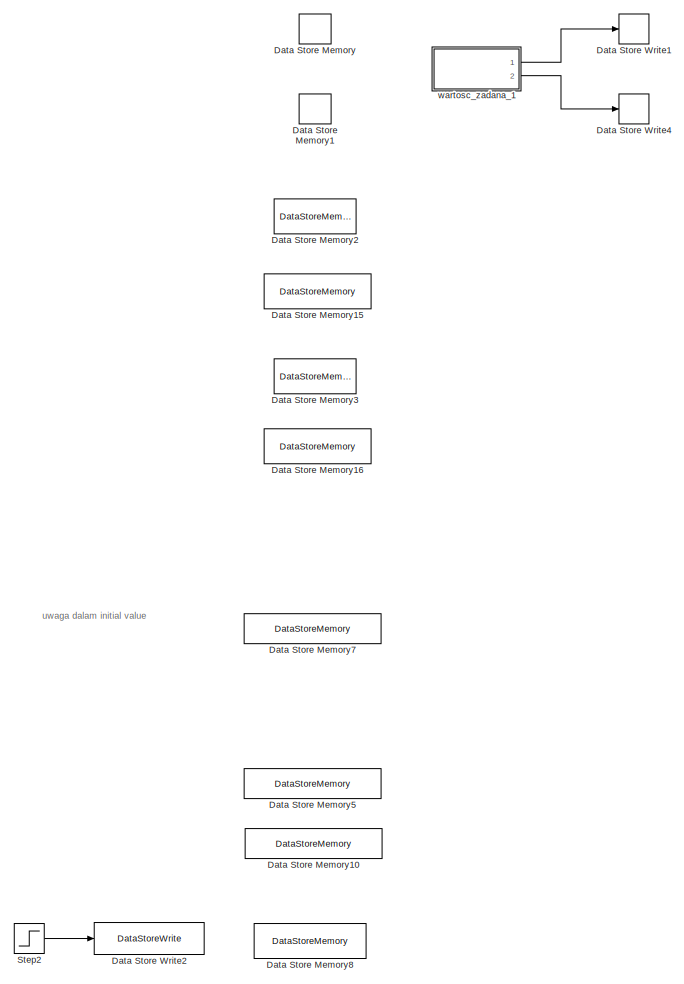
[diagram: root canvas - part 1/7, top left region]
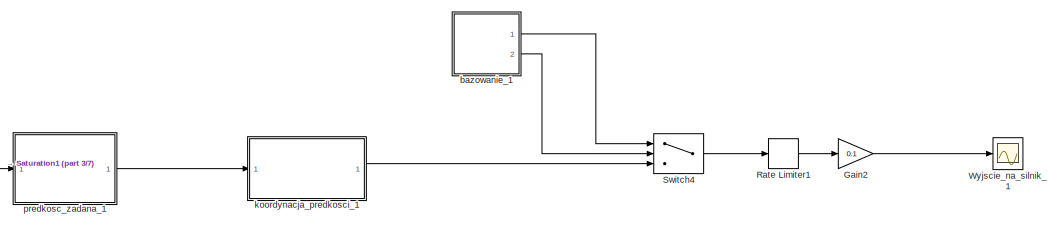
[diagram: root canvas - part 2/7, middle right region]
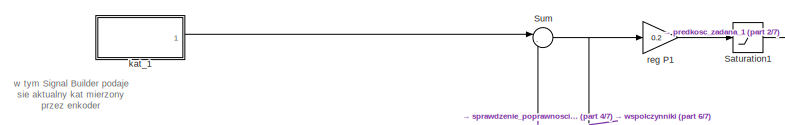
[diagram: root canvas - part 3/7, central region]
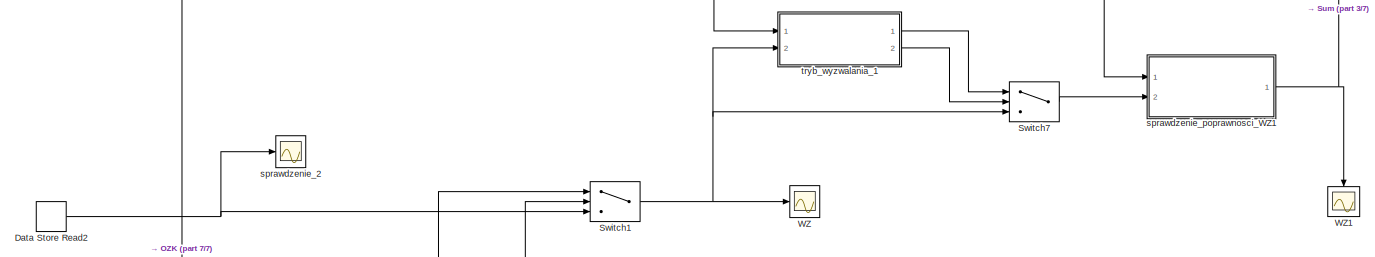
[diagram: root canvas - part 4/7, central region]
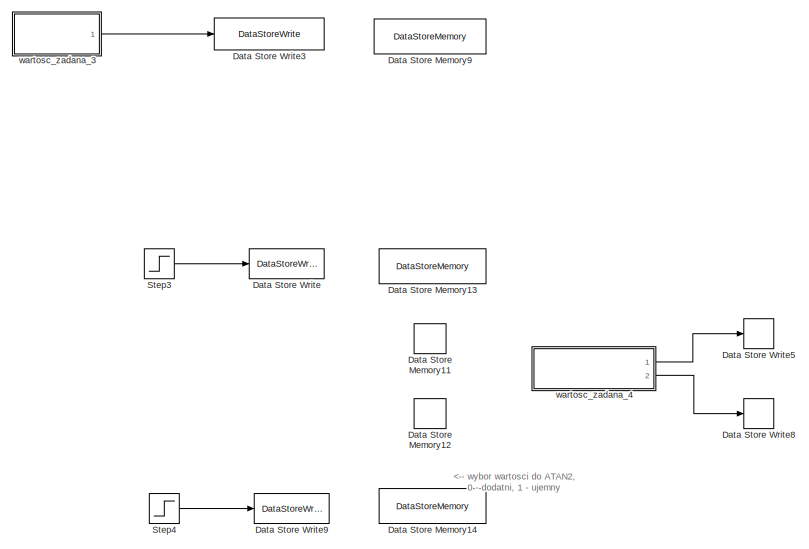
[diagram: root canvas - part 5/7, middle left region]
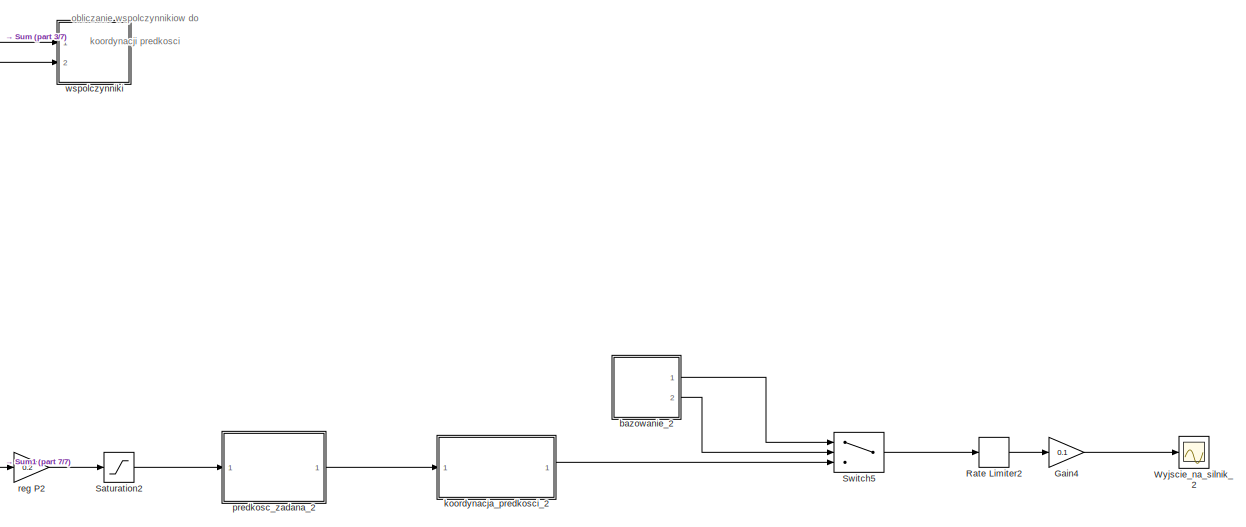
[diagram: root canvas - part 6/7, bottom right region]
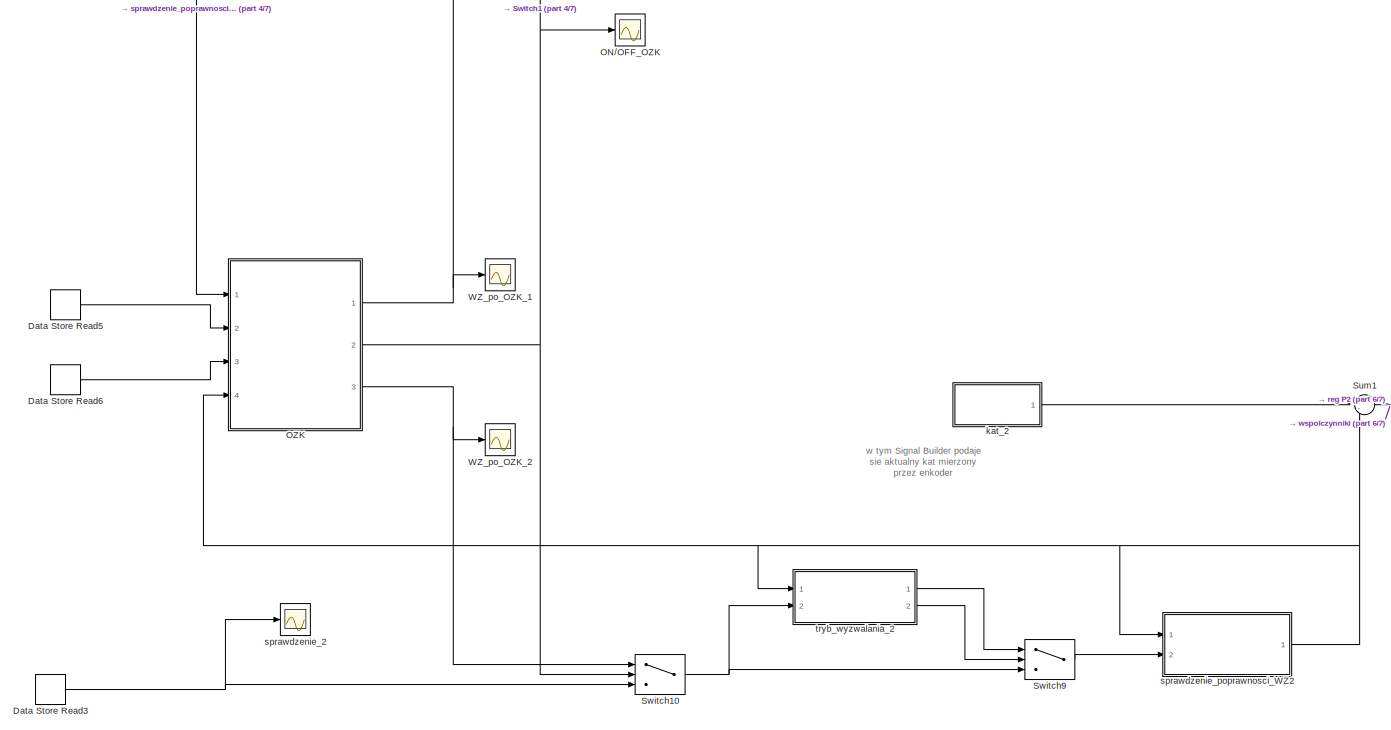
[diagram: root canvas - part 7/7, bottom center region]
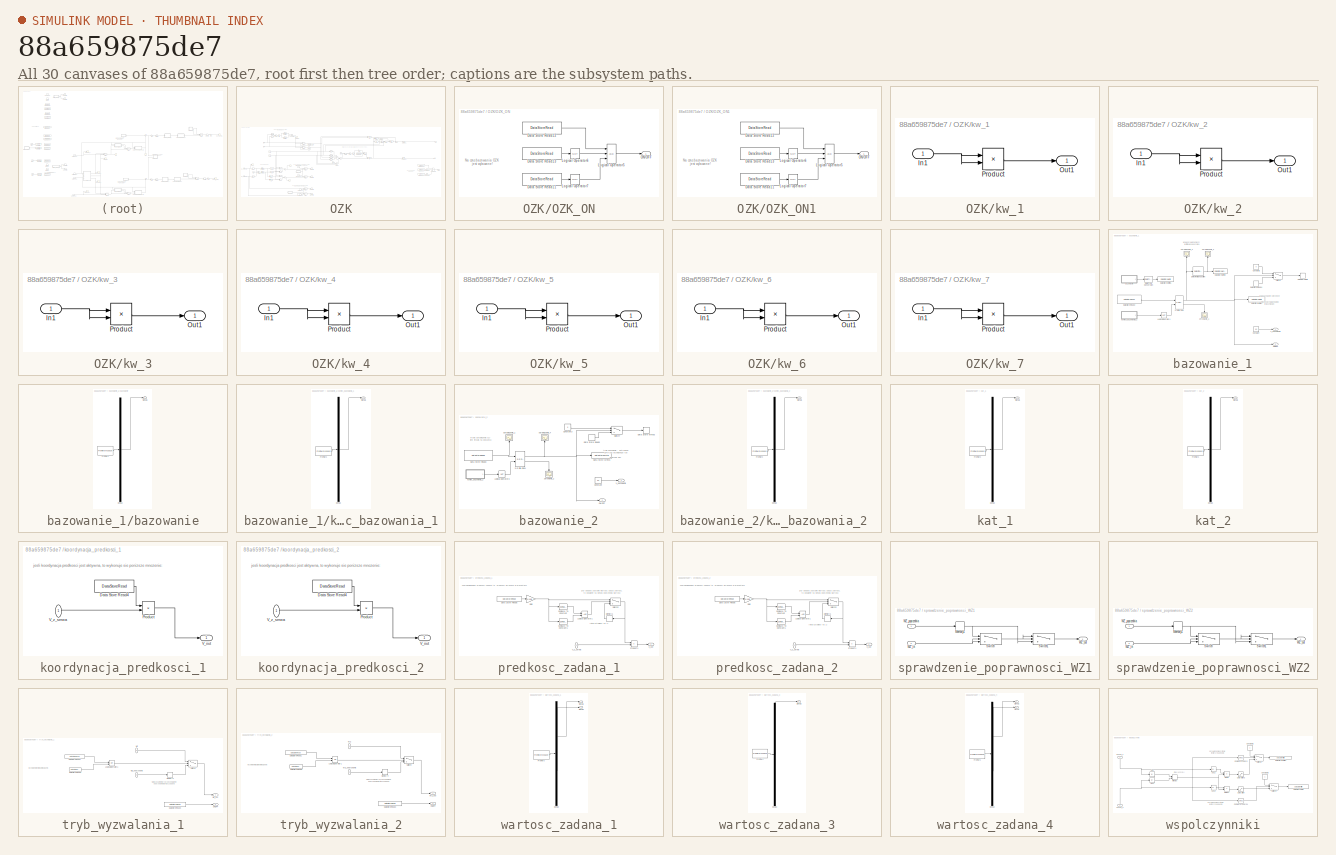
[diagram: thumbnail index - all 30 canvases of the model, root first then tree order]
MODEL slx_88a659875de7
KIND model
CONFIG AbsTol = auto
CONFIG FixedStep = 0.001
CONFIG MaxStep = auto
CONFIG MinStep = auto
CONFIG PostLoadFcn = , if any(exist('dsrtsu_mdlpostloadfcn', 'file') == [2, 3, 6]), try dsrtsu_mdlpostloadfcn('Execute', bdroot); catch fprintf('Error in PostLoadFcn (dsrtsu_mdlpostloadfcn) for model "%s":\n %s\n', bdroot, lasterr); end, end, \n
CONFIG RelTol = 1e-3
CONFIG SampleTimeConstraint = Unconstrained
CONFIG Solver = ode1
CONFIG SolverMode = Auto
CONFIG SolverName = ode1
CONFIG StartTime = 0.0
CONFIG StopTime = 100
BLOCK [DataStoreMemory] Data Store Memory
  DataStoreName = WZ1
  ReadBeforeWriteMsg = warning
  ShowAdditionalParam = off
  WriteAfterReadMsg = warning
  WriteAfterWriteMsg = warning
BLOCK [DataStoreMemory] Data Store Memory1
  DataStoreName = WZ2
  ReadBeforeWriteMsg = warning
  ShowAdditionalParam = off
  WriteAfterReadMsg = warning
  WriteAfterWriteMsg = warning
BLOCK [DataStoreMemory] Data Store Memory10
  DataStoreName = wspolczynnik_2
  ReadBeforeWriteMsg = warning
  ShowAdditionalParam = off
  WriteAfterReadMsg = warning
  WriteAfterWriteMsg = warning
BLOCK [DataStoreMemory] Data Store Memory11
  DataStoreName = WZx
  ReadBeforeWriteMsg = warning
  ShowAdditionalParam = off
  WriteAfterReadMsg = warning
  WriteAfterWriteMsg = warning
BLOCK [DataStoreMemory] Data Store Memory12
  DataStoreName = WZy
  ReadBeforeWriteMsg = warning
  ShowAdditionalParam = off
  WriteAfterReadMsg = warning
  WriteAfterWriteMsg = warning
BLOCK [DataStoreMemory] Data Store Memory13
  DataStoreName = OZK_ON
  InitialValue = false
  ReadBeforeWriteMsg = warning
  ShowAdditionalParam = off
  WriteAfterReadMsg = warning
  WriteAfterWriteMsg = warning
BLOCK [DataStoreMemory] Data Store Memory14
  DataStoreName = konfiguracja
  InitialValue = false
  ReadBeforeWriteMsg = warning
  ShowAdditionalParam = off
  WriteAfterReadMsg = warning
  WriteAfterWriteMsg = warning
BLOCK [DataStoreMemory] Data Store Memory15
  DataStoreName = trwa_bazowanie1
  InitialValue = false
  OutDataTypeStr = boolean
  ReadBeforeWriteMsg = warning
  ShowAdditionalParam = off
  WriteAfterReadMsg = warning
  WriteAfterWriteMsg = warning
BLOCK [DataStoreMemory] Data Store Memory16
  DataStoreName = trwa_bazowanie2
  InitialValue = false
  OutDataTypeStr = boolean
  ReadBeforeWriteMsg = warning
  ShowAdditionalParam = off
  WriteAfterReadMsg = warning
  WriteAfterWriteMsg = warning
BLOCK [DataStoreMemory] Data Store Memory2
  DataStoreName = bazowanie1
  InitialValue = false
  OutDataTypeStr = boolean
  ReadBeforeWriteMsg = warning
  ShowAdditionalParam = off
  WriteAfterReadMsg = warning
  WriteAfterWriteMsg = warning
BLOCK [DataStoreMemory] Data Store Memory3
  DataStoreName = bazowanie2
  InitialValue = false
  OutDataTypeStr = boolean
  ReadBeforeWriteMsg = warning
  ShowAdditionalParam = off
  WriteAfterReadMsg = warning
  WriteAfterWriteMsg = warning
BLOCK [DataStoreMemory] Data Store Memory5
  DataStoreName = wspolczynnik_1
  ReadBeforeWriteMsg = warning
  ShowAdditionalParam = off
  WriteAfterReadMsg = warning
  WriteAfterWriteMsg = warning
BLOCK [DataStoreMemory] Data Store Memory7
  DataStoreName = V_zadana_wartosc
  InitialValue = 5
  ReadBeforeWriteMsg = warning
  ShowAdditionalParam = off
  WriteAfterReadMsg = warning
  WriteAfterWriteMsg = warning
BLOCK [DataStoreMemory] Data Store Memory8
  DataStoreName = wyzwalanie_ON
  ReadBeforeWriteMsg = warning
  ShowAdditionalParam = off
  WriteAfterReadMsg = warning
  WriteAfterWriteMsg = warning
BLOCK [DataStoreMemory] Data Store Memory9
  DataStoreName = wyzwolenie
  ReadBeforeWriteMsg = warning
  ShowAdditionalParam = off
  WriteAfterReadMsg = warning
  WriteAfterWriteMsg = warning
BLOCK [DataStoreRead] Data Store Read2
  DataStoreName = WZ1
  DialogController = Simulink.DDGSource
  Ports = [0, 1]
BLOCK [DataStoreRead] Data Store Read3
  DataStoreName = WZ2
  DialogController = Simulink.DDGSource
  Ports = [0, 1]
BLOCK [DataStoreRead] Data Store Read5
  DataStoreName = WZx
  Ports = [0, 1]
BLOCK [DataStoreRead] Data Store Read6
  DataStoreName = WZy
  Ports = [0, 1]
BLOCK [DataStoreWrite] Data Store Write
  DataStoreName = OZK_ON
  Ports = [1]
BLOCK [DataStoreWrite] Data Store Write1
  DataStoreName = WZ1
  Ports = [1]
BLOCK [DataStoreWrite] Data Store Write2
  DataStoreName = wyzwalanie_ON
  Ports = [1]
BLOCK [DataStoreWrite] Data Store Write3
  DataStoreName = wyzwolenie
  Ports = [1]
BLOCK [DataStoreWrite] Data Store Write4
  DataStoreName = WZ2
  Ports = [1]
BLOCK [DataStoreWrite] Data Store Write5
  DataStoreName = WZx
  Ports = [1]
BLOCK [DataStoreWrite] Data Store Write8
  DataStoreName = WZy
  Ports = [1]
BLOCK [DataStoreWrite] Data Store Write9
  DataStoreName = konfiguracja
  Ports = [1]
BLOCK [Gain] Gain2
  Gain = 0.1
  OutDataTypeStr = Inherit: Inherit via internal rule
  ParamDataTypeStr = Inherit: Inherit via internal rule
  SaturateOnIntegerOverflow = off
BLOCK [Gain] Gain4
  Gain = 0.1
  OutDataTypeStr = Inherit: Inherit via internal rule
  ParamDataTypeStr = Inherit: Inherit via internal rule
  SaturateOnIntegerOverflow = off
BLOCK [Scope] ON//OFF_OZK
  DataFormat = StructureWithTime
  Decimation = 1
  Grid = on
  LimitDataPoints = off
  MaxDataPoints = 5000
  Ports = [1]
  SampleInput = off
  SampleTime = -1
  SaveName = ScopeData1
  SaveToWorkspace = off
  ShowLegends = off
  TickLabels = OneTimeTick
  TimeRange = auto
  YMax = 1.125
  YMin = -0.125
  ZoomMode = on
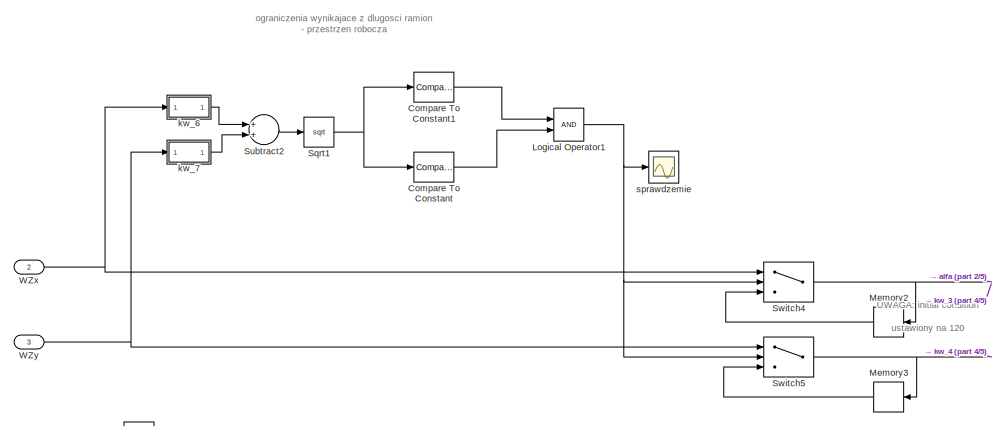
[diagram: OZK - part 1/5, top left region]
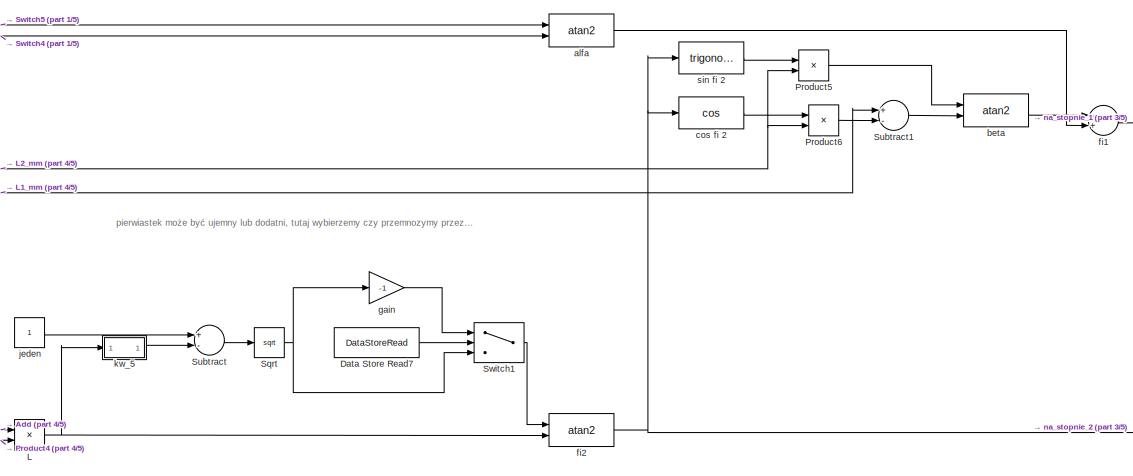
[diagram: OZK - part 2/5, top center region]
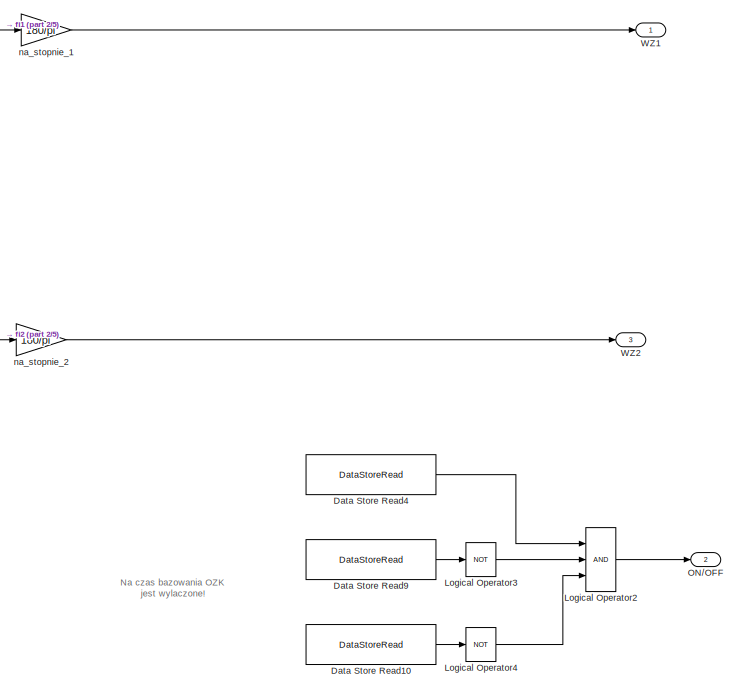
[diagram: OZK - part 3/5, middle right region]
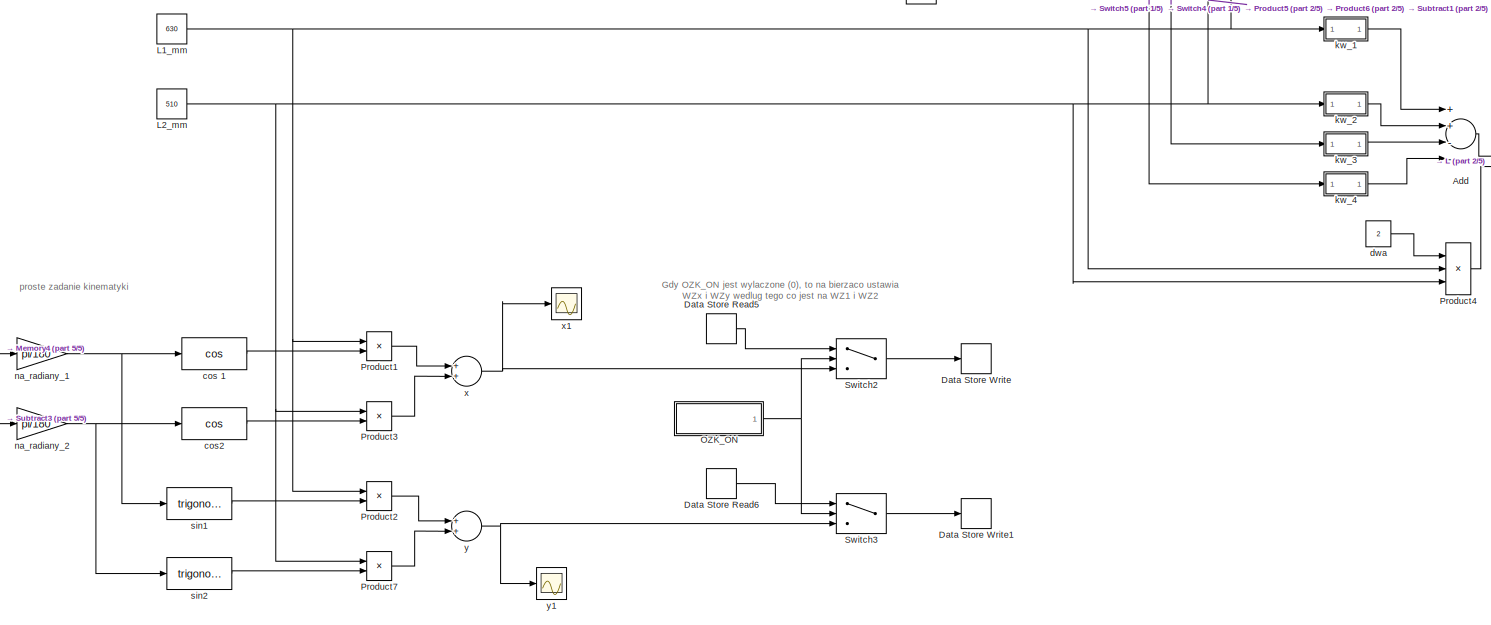
[diagram: OZK - part 4/5, middle left region]
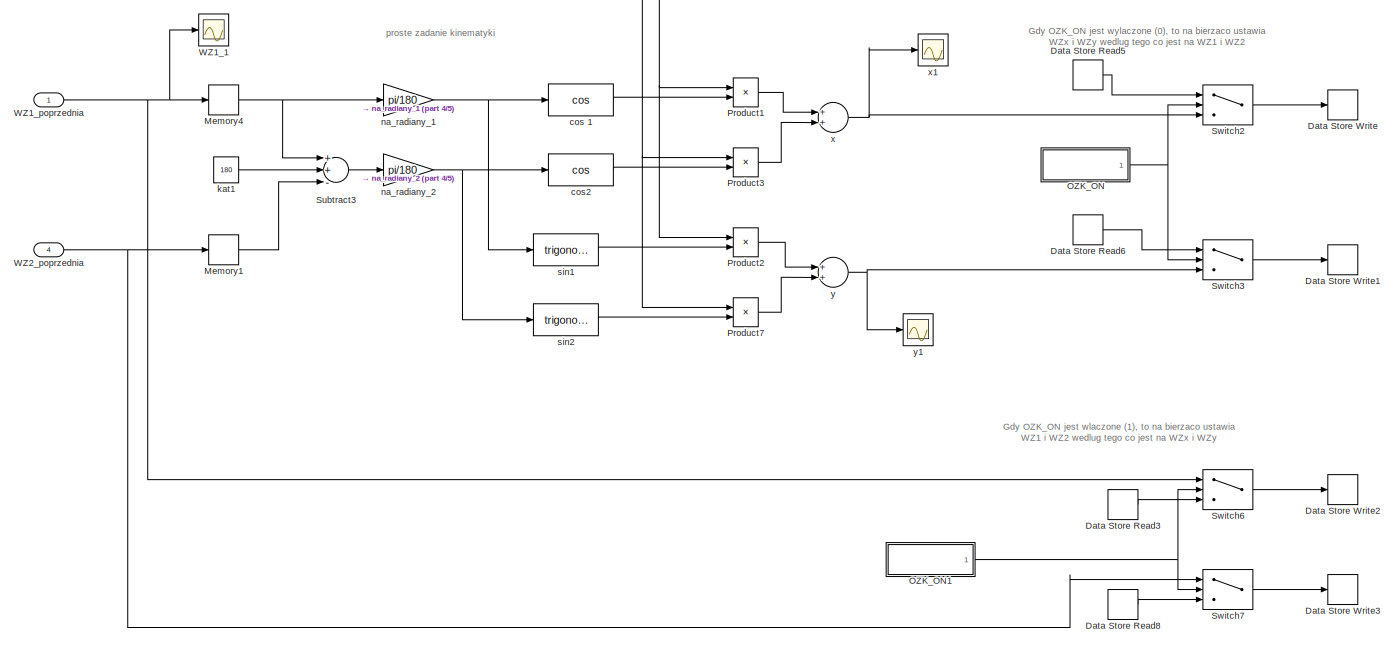
[diagram: OZK - part 5/5, bottom left region]
BLOCK [SubSystem] OZK
  Ports = [4, 3]
  RequestExecContextInheritance = off
  Variant = off
BLOCK [Sum] OZK/Add
  InputSameDT = off
  Inputs = ++--
  OutDataTypeStr = Inherit: Inherit via internal rule
  Ports = [4, 1]
  SaturateOnIntegerOverflow = off
BLOCK [Reference] OZK/Compare To Constant  REF=simulink/Logic and Bit
Operations/Compare
To Constant
  OutDataTypeStr = boolean
  Ports = [1, 1]
  SourceBlock = simulink/Logic and Bit\nOperations/Compare\nTo Constant
  SourceType = Compare To Constant
  ZeroCross = on
  const = 1140
  relop = <=
BLOCK [Reference] OZK/Compare To Constant1  REF=simulink/Logic and Bit
Operations/Compare
To Constant
  OutDataTypeStr = boolean
  Ports = [1, 1]
  SourceBlock = simulink/Logic and Bit\nOperations/Compare\nTo Constant
  SourceType = Compare To Constant
  ZeroCross = on
  const = 120
  relop = >=
BLOCK [DataStoreRead] OZK/Data Store Read10
  DataStoreName = trwa_bazowanie2
  Ports = [0, 1]
BLOCK [DataStoreRead] OZK/Data Store Read3
  DataStoreName = WZ1
  Ports = [0, 1]
BLOCK [DataStoreRead] OZK/Data Store Read4
  DataStoreName = OZK_ON
  Ports = [0, 1]
BLOCK [DataStoreRead] OZK/Data Store Read5
  DataStoreName = WZx
  Ports = [0, 1]
BLOCK [DataStoreRead] OZK/Data Store Read6
  DataStoreName = WZy
  Ports = [0, 1]
BLOCK [DataStoreRead] OZK/Data Store Read7
  DataStoreName = konfiguracja
  Ports = [0, 1]
BLOCK [DataStoreRead] OZK/Data Store Read8
  DataStoreName = WZ2
  Ports = [0, 1]
BLOCK [DataStoreRead] OZK/Data Store Read9
  DataStoreName = trwa_bazowanie1
  Ports = [0, 1]
BLOCK [DataStoreWrite] OZK/Data Store Write
  DataStoreName = WZx
  Ports = [1]
BLOCK [DataStoreWrite] OZK/Data Store Write1
  DataStoreName = WZy
  Ports = [1]
BLOCK [DataStoreWrite] OZK/Data Store Write2
  DataStoreName = WZ1
  Ports = [1]
BLOCK [DataStoreWrite] OZK/Data Store Write3
  DataStoreName = WZ2
  Ports = [1]
BLOCK [Product] OZK/L
  InputSameDT = off
  Inputs = */
  OutDataTypeStr = Inherit: Inherit via internal rule
  Ports = [2, 1]
  RndMeth = Floor
  SaturateOnIntegerOverflow = off
BLOCK [Constant] OZK/L1_mm
  Value = 630
BLOCK [Constant] OZK/L2_mm 
  Value = 510
BLOCK [Logic] OZK/Logical Operator1
  AllPortsSameDT = off
  OutDataTypeStr = boolean
  Ports = [2, 1]
BLOCK [Logic] OZK/Logical Operator2
  AllPortsSameDT = off
  Inputs = 3
  OutDataTypeStr = boolean
  Ports = [3, 1]
BLOCK [Logic] OZK/Logical Operator3
  AllPortsSameDT = off
  Operator = NOT
  OutDataTypeStr = boolean
  Ports = [1, 1]
BLOCK [Logic] OZK/Logical Operator4
  AllPortsSameDT = off
  Operator = NOT
  OutDataTypeStr = boolean
  Ports = [1, 1]
BLOCK [Memory] OZK/Memory1
BLOCK [Memory] OZK/Memory2
  X0 = 120
BLOCK [Memory] OZK/Memory3
BLOCK [Memory] OZK/Memory4
BLOCK [Outport] OZK/ON//OFF
  IconDisplay = Port number
  Port = 2
BLOCK [SubSystem] OZK/OZK_ON
  Ports = [0, 1]
  RequestExecContextInheritance = off
  Variant = off
BLOCK [DataStoreRead] OZK/OZK_ON/Data Store Read11
  DataStoreName = trwa_bazowanie2
  Ports = [0, 1]
BLOCK [DataStoreRead] OZK/OZK_ON/Data Store Read12
  DataStoreName = OZK_ON
  Ports = [0, 1]
BLOCK [DataStoreRead] OZK/OZK_ON/Data Store Read13
  DataStoreName = trwa_bazowanie1
  Ports = [0, 1]
BLOCK [Logic] OZK/OZK_ON/Logical Operator5
  AllPortsSameDT = off
  Inputs = 3
  OutDataTypeStr = boolean
  Ports = [3, 1]
BLOCK [Logic] OZK/OZK_ON/Logical Operator6
  AllPortsSameDT = off
  Operator = NOT
  OutDataTypeStr = boolean
  Ports = [1, 1]
BLOCK [Logic] OZK/OZK_ON/Logical Operator7
  AllPortsSameDT = off
  Operator = NOT
  OutDataTypeStr = boolean
  Ports = [1, 1]
BLOCK [Outport] OZK/OZK_ON/ON//OFF
  IconDisplay = Port number
BLOCK [SubSystem] OZK/OZK_ON1
  Ports = [0, 1]
  RequestExecContextInheritance = off
  Variant = off
BLOCK [DataStoreRead] OZK/OZK_ON1/Data Store Read11
  DataStoreName = trwa_bazowanie2
  Ports = [0, 1]
BLOCK [DataStoreRead] OZK/OZK_ON1/Data Store Read12
  DataStoreName = OZK_ON
  Ports = [0, 1]
BLOCK [DataStoreRead] OZK/OZK_ON1/Data Store Read13
  DataStoreName = trwa_bazowanie1
  Ports = [0, 1]
BLOCK [Logic] OZK/OZK_ON1/Logical Operator5
  AllPortsSameDT = off
  Inputs = 3
  OutDataTypeStr = boolean
  Ports = [3, 1]
BLOCK [Logic] OZK/OZK_ON1/Logical Operator6
  AllPortsSameDT = off
  Operator = NOT
  OutDataTypeStr = boolean
  Ports = [1, 1]
BLOCK [Logic] OZK/OZK_ON1/Logical Operator7
  AllPortsSameDT = off
  Operator = NOT
  OutDataTypeStr = boolean
  Ports = [1, 1]
BLOCK [Outport] OZK/OZK_ON1/ON//OFF
  IconDisplay = Port number
BLOCK [Product] OZK/Product1
  InputSameDT = off
  OutDataTypeStr = Inherit: Inherit via internal rule
  Ports = [2, 1]
  RndMeth = Floor
  SaturateOnIntegerOverflow = off
BLOCK [Product] OZK/Product2
  InputSameDT = off
  OutDataTypeStr = Inherit: Inherit via internal rule
  Ports = [2, 1]
  RndMeth = Floor
  SaturateOnIntegerOverflow = off
BLOCK [Product] OZK/Product3
  InputSameDT = off
  OutDataTypeStr = Inherit: Inherit via internal rule
  Ports = [2, 1]
  RndMeth = Floor
  SaturateOnIntegerOverflow = off
BLOCK [Product] OZK/Product4
  InputSameDT = off
  Inputs = 3
  OutDataTypeStr = Inherit: Inherit via internal rule
  Ports = [3, 1]
  RndMeth = Floor
  SaturateOnIntegerOverflow = off
BLOCK [Product] OZK/Product5
  InputSameDT = off
  OutDataTypeStr = Inherit: Inherit via internal rule
  Ports = [2, 1]
  RndMeth = Floor
  SaturateOnIntegerOverflow = off
BLOCK [Product] OZK/Product6
  InputSameDT = off
  OutDataTypeStr = Inherit: Inherit via internal rule
  Ports = [2, 1]
  RndMeth = Floor
  SaturateOnIntegerOverflow = off
BLOCK [Product] OZK/Product7
  InputSameDT = off
  OutDataTypeStr = Inherit: Inherit via internal rule
  Ports = [2, 1]
  RndMeth = Floor
  SaturateOnIntegerOverflow = off
BLOCK [Sqrt] OZK/Sqrt
BLOCK [Sqrt] OZK/Sqrt1
BLOCK [Sum] OZK/Subtract
  InputSameDT = off
  Inputs = +-
  OutDataTypeStr = Inherit: Inherit via internal rule
  Ports = [2, 1]
  SaturateOnIntegerOverflow = off
BLOCK [Sum] OZK/Subtract1
  InputSameDT = off
  Inputs = +-
  OutDataTypeStr = Inherit: Inherit via internal rule
  Ports = [2, 1]
  SaturateOnIntegerOverflow = off
BLOCK [Sum] OZK/Subtract2
  InputSameDT = off
  OutDataTypeStr = Inherit: Inherit via internal rule
  Ports = [2, 1]
  SaturateOnIntegerOverflow = off
BLOCK [Sum] OZK/Subtract3
  InputSameDT = off
  Inputs = ++-
  OutDataTypeStr = Inherit: Inherit via internal rule
  Ports = [3, 1]
  SaturateOnIntegerOverflow = off
BLOCK [Switch] OZK/Switch1
  Criteria = u2 > Threshold
  InputSameDT = off
  SaturateOnIntegerOverflow = off
BLOCK [Switch] OZK/Switch2
  Criteria = u2 > Threshold
  InputSameDT = off
  SaturateOnIntegerOverflow = off
BLOCK [Switch] OZK/Switch3
  Criteria = u2 > Threshold
  InputSameDT = off
  SaturateOnIntegerOverflow = off
BLOCK [Switch] OZK/Switch4
  Criteria = u2 > Threshold
  InputSameDT = off
  SaturateOnIntegerOverflow = off
BLOCK [Switch] OZK/Switch5
  Criteria = u2 > Threshold
  InputSameDT = off
  SaturateOnIntegerOverflow = off
BLOCK [Switch] OZK/Switch6
  Criteria = u2 > Threshold
  InputSameDT = off
  SaturateOnIntegerOverflow = off
BLOCK [Switch] OZK/Switch7
  Criteria = u2 > Threshold
  InputSameDT = off
  SaturateOnIntegerOverflow = off
BLOCK [Outport] OZK/WZ1
  IconDisplay = Port number
BLOCK [Scope] OZK/WZ1_1 
  DataFormat = StructureWithTime
  Decimation = 1
  Grid = on
  LimitDataPoints = off
  MaxDataPoints = 5000
  Ports = [1]
  SampleInput = off
  SampleTime = -1
  SaveName = ScopeData3
  SaveToWorkspace = off
  ShowLegends = off
  TickLabels = OneTimeTick
  TimeRange = auto
  YMax = 202.5
  YMin = -22.5
  ZoomMode = on
BLOCK [Inport] OZK/WZ1_poprzednia
  IconDisplay = Port number
BLOCK [Outport] OZK/WZ2
  IconDisplay = Port number
  Port = 3
BLOCK [Inport] OZK/WZ2_poprzednia
  IconDisplay = Port number
  Port = 4
BLOCK [Inport] OZK/WZx
  IconDisplay = Port number
  Port = 2
BLOCK [Inport] OZK/WZy 
  IconDisplay = Port number
  Port = 3
BLOCK [Trigonometry] OZK/alfa
  Operator = atan2
  Ports = [2, 1]
BLOCK [Trigonometry] OZK/beta
  Operator = atan2
  Ports = [2, 1]
BLOCK [Trigonometry] OZK/cos 1
  Operator = cos
  Ports = [1, 1]
BLOCK [Trigonometry] OZK/cos fi 2
  Operator = cos
  Ports = [1, 1]
BLOCK [Trigonometry] OZK/cos2
  Operator = cos
  Ports = [1, 1]
BLOCK [Constant] OZK/dwa
  Value = 2
BLOCK [Sum] OZK/fi1 
  InputSameDT = off
  Inputs = -+
  OutDataTypeStr = Inherit: Inherit via internal rule
  Ports = [2, 1]
  SaturateOnIntegerOverflow = off
BLOCK [Trigonometry] OZK/fi2
  Operator = atan2
  Ports = [2, 1]
BLOCK [Gain] OZK/gain
  Gain = -1
  OutDataTypeStr = Inherit: Inherit via internal rule
  ParamDataTypeStr = Inherit: Inherit via internal rule
  SaturateOnIntegerOverflow = off
BLOCK [Constant] OZK/jeden 
BLOCK [Constant] OZK/kat1
  Value = 180
BLOCK [SubSystem] OZK/kw_1
  Ports = [1, 1]
  RequestExecContextInheritance = off
  Variant = off
BLOCK [Inport] OZK/kw_1/In1
  IconDisplay = Port number
BLOCK [Outport] OZK/kw_1/Out1
  IconDisplay = Port number
BLOCK [Product] OZK/kw_1/Product
  InputSameDT = off
  OutDataTypeStr = Inherit: Inherit via internal rule
  Ports = [2, 1]
  RndMeth = Floor
  SaturateOnIntegerOverflow = off
BLOCK [SubSystem] OZK/kw_2
  Ports = [1, 1]
  RequestExecContextInheritance = off
  Variant = off
BLOCK [Inport] OZK/kw_2/In1
  IconDisplay = Port number
BLOCK [Outport] OZK/kw_2/Out1
  IconDisplay = Port number
BLOCK [Product] OZK/kw_2/Product
  InputSameDT = off
  OutDataTypeStr = Inherit: Inherit via internal rule
  Ports = [2, 1]
  RndMeth = Floor
  SaturateOnIntegerOverflow = off
BLOCK [SubSystem] OZK/kw_3
  Ports = [1, 1]
  RequestExecContextInheritance = off
  Variant = off
BLOCK [Inport] OZK/kw_3/In1
  IconDisplay = Port number
BLOCK [Outport] OZK/kw_3/Out1
  IconDisplay = Port number
BLOCK [Product] OZK/kw_3/Product
  InputSameDT = off
  OutDataTypeStr = Inherit: Inherit via internal rule
  Ports = [2, 1]
  RndMeth = Floor
  SaturateOnIntegerOverflow = off
BLOCK [SubSystem] OZK/kw_4
  Ports = [1, 1]
  RequestExecContextInheritance = off
  Variant = off
BLOCK [Inport] OZK/kw_4/In1
  IconDisplay = Port number
BLOCK [Outport] OZK/kw_4/Out1
  IconDisplay = Port number
BLOCK [Product] OZK/kw_4/Product
  InputSameDT = off
  OutDataTypeStr = Inherit: Inherit via internal rule
  Ports = [2, 1]
  RndMeth = Floor
  SaturateOnIntegerOverflow = off
BLOCK [SubSystem] OZK/kw_5
  Ports = [1, 1]
  RequestExecContextInheritance = off
  Variant = off
BLOCK [Inport] OZK/kw_5/In1
  IconDisplay = Port number
BLOCK [Outport] OZK/kw_5/Out1
  IconDisplay = Port number
BLOCK [Product] OZK/kw_5/Product
  InputSameDT = off
  OutDataTypeStr = Inherit: Inherit via internal rule
  Ports = [2, 1]
  RndMeth = Floor
  SaturateOnIntegerOverflow = off
BLOCK [SubSystem] OZK/kw_6
  Ports = [1, 1]
  RequestExecContextInheritance = off
  Variant = off
BLOCK [Inport] OZK/kw_6/In1
  IconDisplay = Port number
BLOCK [Outport] OZK/kw_6/Out1
  IconDisplay = Port number
BLOCK [Product] OZK/kw_6/Product
  InputSameDT = off
  OutDataTypeStr = Inherit: Inherit via internal rule
  Ports = [2, 1]
  RndMeth = Floor
  SaturateOnIntegerOverflow = off
BLOCK [SubSystem] OZK/kw_7
  Ports = [1, 1]
  RequestExecContextInheritance = off
  Variant = off
BLOCK [Inport] OZK/kw_7/In1
  IconDisplay = Port number
BLOCK [Outport] OZK/kw_7/Out1
  IconDisplay = Port number
BLOCK [Product] OZK/kw_7/Product
  InputSameDT = off
  OutDataTypeStr = Inherit: Inherit via internal rule
  Ports = [2, 1]
  RndMeth = Floor
  SaturateOnIntegerOverflow = off
BLOCK [Gain] OZK/na_radiany_1
  Gain = pi/180
  OutDataTypeStr = Inherit: Inherit via internal rule
  ParamDataTypeStr = Inherit: Inherit via internal rule
  SaturateOnIntegerOverflow = off
BLOCK [Gain] OZK/na_radiany_2
  Gain = pi/180
  OutDataTypeStr = Inherit: Inherit via internal rule
  ParamDataTypeStr = Inherit: Inherit via internal rule
  SaturateOnIntegerOverflow = off
BLOCK [Gain] OZK/na_stopnie_1
  Gain = 180/pi
  OutDataTypeStr = Inherit: Inherit via internal rule
  ParamDataTypeStr = Inherit: Inherit via internal rule
  SaturateOnIntegerOverflow = off
BLOCK [Gain] OZK/na_stopnie_2
  Gain = 180/pi
  OutDataTypeStr = Inherit: Inherit via internal rule
  ParamDataTypeStr = Inherit: Inherit via internal rule
  SaturateOnIntegerOverflow = off
BLOCK [Trigonometry] OZK/sin fi 2 
  Ports = [1, 1]
BLOCK [Trigonometry] OZK/sin1
  Ports = [1, 1]
BLOCK [Trigonometry] OZK/sin2
  Ports = [1, 1]
BLOCK [Scope] OZK/sprawdzemie
  DataFormat = StructureWithTime
  Decimation = 1
  Grid = on
  LimitDataPoints = off
  MaxDataPoints = 5000
  Ports = [1]
  SampleInput = off
  SampleTime = -1
  SaveName = ScopeData4
  SaveToWorkspace = off
  ShowLegends = off
  TickLabels = OneTimeTick
  TimeRange = auto
  YMax = 1.125
  YMin = -0.125
  ZoomMode = on
BLOCK [Sum] OZK/x
  InputSameDT = off
  OutDataTypeStr = Inherit: Inherit via internal rule
  Ports = [2, 1]
  SaturateOnIntegerOverflow = off
BLOCK [Scope] OZK/x1 
  DataFormat = StructureWithTime
  Decimation = 1
  Grid = on
  LimitDataPoints = off
  MaxDataPoints = 5000
  Ports = [1]
  SampleInput = off
  SampleTime = -1
  SaveName = ScopeData5
  SaveToWorkspace = off
  ShowLegends = off
  TickLabels = OneTimeTick
  TimeRange = auto
  YMax = 235.76262
  YMin = -921.86362
  ZoomMode = on
BLOCK [Sum] OZK/y
  InputSameDT = off
  OutDataTypeStr = Inherit: Inherit via internal rule
  Ports = [2, 1]
  SaturateOnIntegerOverflow = off
BLOCK [Scope] OZK/y1 
  DataFormat = StructureWithTime
  Decimation = 1
  Grid = on
  LimitDataPoints = off
  MaxDataPoints = 5000
  Ports = [1]
  SampleInput = off
  SampleTime = -1
  SaveName = ScopeData6
  SaveToWorkspace = off
  ShowLegends = off
  TickLabels = OneTimeTick
  TimeRange = auto
  YMax = 906.86363
  YMin = -100.76263
  ZoomMode = on
BLOCK [RateLimiter] Rate Limiter1
  FallingSlewLimit = -50
  RisingSlewLimit = 50
  SampleTimeMode = inherited
BLOCK [RateLimiter] Rate Limiter2
  FallingSlewLimit = -50
  RisingSlewLimit = 50
  SampleTimeMode = inherited
BLOCK [Saturate] Saturation1
  InputPortMap = u0
  LowerLimit = -3
  Ports = [1, 1]
  UpperLimit = 3
BLOCK [Saturate] Saturation2
  InputPortMap = u0
  LowerLimit = -3
  Ports = [1, 1]
  UpperLimit = 3
BLOCK [Step] Step2
  SampleTime = 0
  Time = 0
BLOCK [Step] Step3
  SampleTime = 0
  Time = 0
BLOCK [Step] Step4
  SampleTime = 0
  Time = 100
BLOCK [Sum] Sum
  IconShape = round
  InputSameDT = off
  Inputs = |-+
  OutDataTypeStr = Inherit: Inherit via internal rule
  Ports = [2, 1]
  SaturateOnIntegerOverflow = off
BLOCK [Sum] Sum1
  IconShape = round
  InputSameDT = off
  Inputs = |-+
  OutDataTypeStr = Inherit: Inherit via internal rule
  Ports = [2, 1]
  SaturateOnIntegerOverflow = off
BLOCK [Switch] Switch1
  Criteria = u2 > Threshold
  InputSameDT = off
  SaturateOnIntegerOverflow = off
BLOCK [Switch] Switch10
  Criteria = u2 > Threshold
  InputSameDT = off
  SaturateOnIntegerOverflow = off
BLOCK [Switch] Switch4
  Criteria = u2 > Threshold
  InputSameDT = off
  SaturateOnIntegerOverflow = off
BLOCK [Switch] Switch5
  Criteria = u2 > Threshold
  InputSameDT = off
  SaturateOnIntegerOverflow = off
BLOCK [Switch] Switch7
  Criteria = u2 > Threshold
  InputSameDT = off
  SaturateOnIntegerOverflow = off
BLOCK [Switch] Switch9
  Criteria = u2 > Threshold
  InputSameDT = off
  SaturateOnIntegerOverflow = off
BLOCK [Scope] WZ
  DataFormat = StructureWithTime
  Decimation = 1
  Grid = on
  LimitDataPoints = off
  MaxDataPoints = 5000
  Ports = [1]
  SampleInput = off
  SampleTime = -1
  SaveName = ScopeData2
  SaveToWorkspace = off
  ShowLegends = off
  TickLabels = OneTimeTick
  TimeRange = auto
  YMax = 202.5
  YMin = -22.5
  ZoomMode = on
BLOCK [Scope] WZ1
  DataFormat = StructureWithTime
  Decimation = 1
  Grid = on
  LimitDataPoints = off
  MaxDataPoints = 5000
  Ports = [1]
  SampleInput = off
  SampleTime = -1
  SaveName = ScopeData3
  SaveToWorkspace = off
  ShowLegends = off
  TickLabels = OneTimeTick
  TimeRange = auto
  YMax = 202.5
  YMin = -22.5
  ZoomMode = on
BLOCK [Scope] WZ_po_OZK_1
  DataFormat = StructureWithTime
  Decimation = 1
  Grid = on
  LimitDataPoints = off
  MaxDataPoints = 5000
  Ports = [1]
  SampleInput = off
  SampleTime = -1
  SaveName = ScopeData1
  SaveToWorkspace = off
  ShowLegends = off
  TickLabels = OneTimeTick
  TimeRange = auto
  YMax = 202.5
  YMin = -22.5
  ZoomMode = on
BLOCK [Scope] WZ_po_OZK_2
  DataFormat = StructureWithTime
  Decimation = 1
  Grid = on
  LimitDataPoints = off
  MaxDataPoints = 5000
  Ports = [1]
  SampleInput = off
  SampleTime = -1
  SaveName = ScopeData2
  SaveToWorkspace = off
  ShowLegends = off
  TickLabels = OneTimeTick
  TimeRange = auto
  YMax = 202.32547
  YMin = -22.48061
  ZoomMode = on
BLOCK [Scope] Wyjscie_na_silnik_1
  DataFormat = StructureWithTime
  Decimation = 1
  Grid = on
  LimitDataPoints = off
  MaxDataPoints = 5000
  Ports = [1]
  SampleInput = off
  SampleTime = -1
  SaveName = ScopeData2
  SaveToWorkspace = off
  ShowLegends = off
  TickLabels = OneTimeTick
  TimeRange = auto
  YMax = 1.00000
  YMin = -1.00000
  ZoomMode = on
BLOCK [Scope] Wyjscie_na_silnik_2
  DataFormat = StructureWithTime
  Decimation = 1
  Grid = on
  LimitDataPoints = off
  MaxDataPoints = 5000
  Ports = [1]
  SampleInput = off
  SampleTime = -1
  SaveName = ScopeData3
  SaveToWorkspace = off
  ShowLegends = off
  TickLabels = OneTimeTick
  TimeRange = auto
  YMax = 0.3375
  YMin = -0.0375
  ZoomMode = on
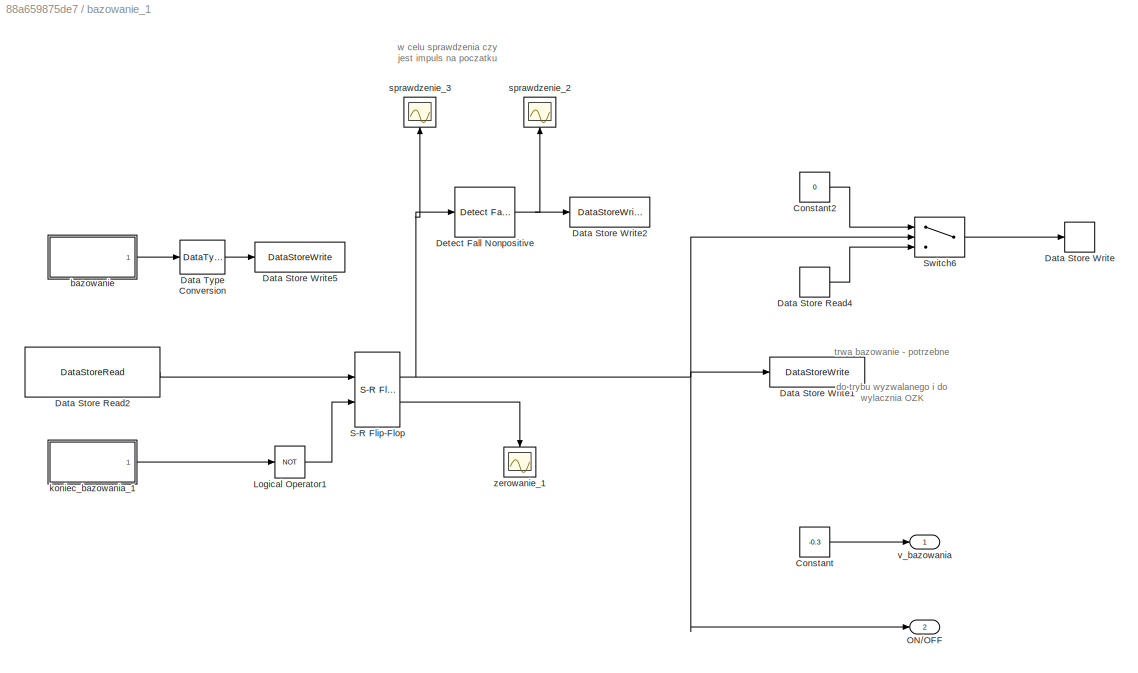
BLOCK [SubSystem] bazowanie_1
  Ports = [0, 2]
  RequestExecContextInheritance = off
  Variant = off
BLOCK [Constant] bazowanie_1/Constant
  Value = -0.3
BLOCK [Constant] bazowanie_1/Constant2
  Value = 0
BLOCK [DataStoreRead] bazowanie_1/Data Store Read2
  DataStoreName = bazowanie1
  Ports = [0, 1]
BLOCK [DataStoreRead] bazowanie_1/Data Store Read4
  DataStoreName = WZ1
  DialogController = Simulink.DDGSource
  Ports = [0, 1]
BLOCK [DataStoreWrite] bazowanie_1/Data Store Write
  DataStoreName = WZ1
  Ports = [1]
BLOCK [DataStoreWrite] bazowanie_1/Data Store Write1
  DataStoreName = trwa_bazowanie1
  Ports = [1]
BLOCK [DataStoreWrite] bazowanie_1/Data Store Write2
  DataStoreName = bazowanie2
  Ports = [1]
BLOCK [DataStoreWrite] bazowanie_1/Data Store Write5
  DataStoreName = bazowanie1
  Ports = [1]
BLOCK [DataTypeConversion] bazowanie_1/Data Type Conversion
  OutDataTypeStr = boolean
  RndMeth = Floor
  SaturateOnIntegerOverflow = off
BLOCK [Reference] bazowanie_1/Detect Fall Nonpositive  REF=simulink/Logic and Bit
Operations/Detect Fall
Nonpositive
  InputProcessing = Inherited
  OutDataTypeStr = boolean
  Ports = [1, 1]
  SourceBlock = simulink/Logic and Bit\nOperations/Detect Fall\nNonpositive
  SourceType = Detect Fall Nonpositive
  vinit = 1
BLOCK [Logic] bazowanie_1/Logical Operator1
  AllPortsSameDT = off
  Operator = NOT
  OutDataTypeStr = boolean
  Ports = [1, 1]
BLOCK [Outport] bazowanie_1/ON//OFF
  IconDisplay = Port number
  Port = 2
BLOCK [Reference] bazowanie_1/S-R Flip-Flop  REF=simulink_extras/Flip Flops/S-R
Flip-Flop
  Ports = [2, 2]
  SourceBlock = simulink_extras/Flip Flops/S-R\nFlip-Flop
  SourceType = SRFlipFlop
  initial_condition = 0
BLOCK [Switch] bazowanie_1/Switch6
  Criteria = u2 > Threshold
  InputSameDT = off
  SaturateOnIntegerOverflow = off
BLOCK [SubSystem] bazowanie_1/bazowanie
  ClipboardFcn = sigbuilder_block('clipboard');
  CloseFcn = sigbuilder_block('close');
  ContinueFcn = sigbuilder_block('continue');
  CopyFcn = sigbuilder_block('copy');
  DeleteFcn = sigbuilder_block('delete');
  LoadFcn = sigbuilder_block('load');
  MaskHideContents = on
  ModelCloseFcn = sigbuilder_block('modelClose');
  NameChangeFcn = sigbuilder_block('namechange');
  OpenFcn = sigbuilder_block('open',[437.25 153 550.5 359.25 ]);
  PauseFcn = sigbuilder_block('pause');
  Ports = [0, 1]
  PreSaveFcn = sigbuilder_block('preSave');
  RequestExecContextInheritance = off
  StartFcn = sigbuilder_block('start');
  StopFcn = sigbuilder_block('stop');
  Tag = STV Subsys
  Variant = off
BLOCK [Demux] bazowanie_1/bazowanie/Demux
  Outputs = 1
  Ports = [1, 1]
  Tag = STV Demux
BLOCK [FromWorkspace] bazowanie_1/bazowanie/FromWs
  SampleTime = 0
  Tag = STV FromWs
  VariableName = tuvar
  ZeroCross = on
BLOCK [Outport] bazowanie_1/bazowanie/Signal 1
  IconDisplay = Port number
  Tag = STV Outport
BLOCK [SubSystem] bazowanie_1/koniec_bazowania_1
  ClipboardFcn = sigbuilder_block('clipboard');
  CloseFcn = sigbuilder_block('close');
  ContinueFcn = sigbuilder_block('continue');
  CopyFcn = sigbuilder_block('copy');
  DeleteFcn = sigbuilder_block('delete');
  LoadFcn = sigbuilder_block('load',[437.25 153 550.5 359.25 ]);
  MaskHideContents = on
  ModelCloseFcn = sigbuilder_block('modelClose');
  NameChangeFcn = sigbuilder_block('namechange');
  OpenFcn = sigbuilder_block('open',[437.25 153 550.5 359.25 ]);
  PauseFcn = sigbuilder_block('pause');
  Ports = [0, 1]
  PreSaveFcn = sigbuilder_block('preSave');
  RequestExecContextInheritance = off
  StartFcn = sigbuilder_block('start');
  StopFcn = sigbuilder_block('stop');
  Tag = STV Subsys
  Variant = off
BLOCK [Demux] bazowanie_1/koniec_bazowania_1/Demux
  Outputs = 1
  Ports = [1, 1]
  Tag = STV Demux
BLOCK [FromWorkspace] bazowanie_1/koniec_bazowania_1/FromWs
  SampleTime = 0
  Tag = STV FromWs
  VariableName = tuvar
  ZeroCross = on
BLOCK [Outport] bazowanie_1/koniec_bazowania_1/Signal 1
  IconDisplay = Port number
  Tag = STV Outport
BLOCK [Scope] bazowanie_1/sprawdzenie_2
  DataFormat = StructureWithTime
  Decimation = 1
  Grid = on
  LimitDataPoints = off
  MaxDataPoints = 5000
  Ports = [1]
  SampleInput = off
  SampleTime = -1
  SaveName = ScopeData5
  SaveToWorkspace = off
  ShowLegends = off
  TickLabels = OneTimeTick
  TimeRange = auto
  YMax = 1.125
  YMin = -0.125
  ZoomMode = on
BLOCK [Scope] bazowanie_1/sprawdzenie_3
  DataFormat = StructureWithTime
  Decimation = 1
  Grid = on
  LimitDataPoints = off
  MaxDataPoints = 5000
  Ports = [1]
  SampleInput = off
  SampleTime = -1
  SaveName = ScopeData6
  SaveToWorkspace = off
  ShowLegends = off
  TickLabels = OneTimeTick
  TimeRange = auto
  YMax = 1.125
  YMin = -0.125
  ZoomMode = on
BLOCK [Outport] bazowanie_1/v_bazowania
  IconDisplay = Port number
BLOCK [Scope] bazowanie_1/zerowanie_1
  DataFormat = StructureWithTime
  Decimation = 1
  Grid = on
  LimitDataPoints = off
  MaxDataPoints = 5000
  Ports = [1]
  SampleInput = off
  SampleTime = -1
  SaveName = ScopeData
  SaveToWorkspace = off
  ShowLegends = off
  TickLabels = OneTimeTick
  TimeRange = auto
  YMax = 1.1
  YMin = 0.9
  ZoomMode = on
BLOCK [SubSystem] bazowanie_2
  Ports = [0, 2]
  RequestExecContextInheritance = off
  Variant = off
BLOCK [Constant] bazowanie_2/Constant
  Value = -0.3
BLOCK [Constant] bazowanie_2/Constant3
  Value = 0
BLOCK [DataStoreRead] bazowanie_2/Data Store Read3
  DataStoreName = bazowanie2
  Ports = [0, 1]
BLOCK [DataStoreRead] bazowanie_2/Data Store Read5
  DataStoreName = WZ2
  DialogController = Simulink.DDGSource
  Ports = [0, 1]
BLOCK [DataStoreWrite] bazowanie_2/Data Store Write1
  DataStoreName = trwa_bazowanie2
  Ports = [1]
BLOCK [DataStoreWrite] bazowanie_2/Data Store Write3
  DataStoreName = WZ2
  Ports = [1]
BLOCK [Logic] bazowanie_2/Logical Operator3
  AllPortsSameDT = off
  Operator = NOT
  OutDataTypeStr = boolean
  Ports = [1, 1]
BLOCK [Outport] bazowanie_2/ON//OFF
  IconDisplay = Port number
  Port = 2
BLOCK [Reference] bazowanie_2/S-R Flip-Flop1  REF=simulink_extras/Flip Flops/S-R
Flip-Flop
  Ports = [2, 2]
  SourceBlock = simulink_extras/Flip Flops/S-R\nFlip-Flop
  SourceType = SRFlipFlop
  initial_condition = 0
BLOCK [Switch] bazowanie_2/Switch7
  Criteria = u2 > Threshold
  InputSameDT = off
  SaturateOnIntegerOverflow = off
BLOCK [SubSystem] bazowanie_2/koniec_bazowania_2 
  ClipboardFcn = sigbuilder_block('clipboard');
  CloseFcn = sigbuilder_block('close');
  ContinueFcn = sigbuilder_block('continue');
  CopyFcn = sigbuilder_block('copy');
  DeleteFcn = sigbuilder_block('delete');
  LoadFcn = sigbuilder_block('load');
  MaskHideContents = on
  ModelCloseFcn = sigbuilder_block('modelClose');
  NameChangeFcn = sigbuilder_block('namechange');
  OpenFcn = sigbuilder_block('open',[437.25 153 550.5 359.25 ]);
  PauseFcn = sigbuilder_block('pause');
  Ports = [0, 1]
  PreSaveFcn = sigbuilder_block('preSave');
  RequestExecContextInheritance = off
  StartFcn = sigbuilder_block('start');
  StopFcn = sigbuilder_block('stop');
  Tag = STV Subsys
  Variant = off
BLOCK [Demux] bazowanie_2/koniec_bazowania_2 /Demux
  Outputs = 1
  Ports = [1, 1]
  Tag = STV Demux
BLOCK [FromWorkspace] bazowanie_2/koniec_bazowania_2 /FromWs
  SampleTime = 0
  Tag = STV FromWs
  VariableName = tuvar
  ZeroCross = on
BLOCK [Outport] bazowanie_2/koniec_bazowania_2 /Signal 1
  IconDisplay = Port number
  Tag = STV Outport
BLOCK [Scope] bazowanie_2/sprawdzenie_1
  DataFormat = StructureWithTime
  Decimation = 1
  Grid = on
  LimitDataPoints = off
  MaxDataPoints = 5000
  Ports = [1]
  SampleInput = off
  SampleTime = -1
  SaveName = ScopeData4
  SaveToWorkspace = off
  ShowLegends = off
  TickLabels = OneTimeTick
  TimeRange = auto
  YMax = 1.125
  YMin = -0.125
  ZoomMode = on
BLOCK [Scope] bazowanie_2/sprawdzenie_4
  DataFormat = StructureWithTime
  Decimation = 1
  Grid = on
  LimitDataPoints = off
  MaxDataPoints = 5000
  Ports = [1]
  SampleInput = off
  SampleTime = -1
  SaveName = ScopeData1
  SaveToWorkspace = off
  ShowLegends = off
  TickLabels = OneTimeTick
  TimeRange = auto
  YMax = 1.125
  YMin = -0.125
  ZoomMode = on
BLOCK [Outport] bazowanie_2/v_bazowania
  IconDisplay = Port number
BLOCK [Scope] bazowanie_2/zerowanie_2
  DataFormat = StructureWithTime
  Decimation = 1
  Grid = on
  LimitDataPoints = off
  MaxDataPoints = 5000
  Ports = [1]
  SampleInput = off
  SampleTime = -1
  SaveName = ScopeData1
  SaveToWorkspace = off
  ShowLegends = off
  TickLabels = OneTimeTick
  TimeRange = auto
  YMax = 1.125
  YMin = -0.125
  ZoomMode = on
BLOCK [SubSystem] kat_1
  ClipboardFcn = sigbuilder_block('clipboard');
  CloseFcn = sigbuilder_block('close');
  ContinueFcn = sigbuilder_block('continue');
  CopyFcn = sigbuilder_block('copy');
  DeleteFcn = sigbuilder_block('delete');
  LoadFcn = sigbuilder_block('load');
  MaskHideContents = on
  ModelCloseFcn = sigbuilder_block('modelClose');
  NameChangeFcn = sigbuilder_block('namechange');
  OpenFcn = sigbuilder_block('open',[437.25 153 550.5 359.25 ]);
  PauseFcn = sigbuilder_block('pause');
  Ports = [0, 1]
  PreSaveFcn = sigbuilder_block('preSave');
  RequestExecContextInheritance = off
  StartFcn = sigbuilder_block('start');
  StopFcn = sigbuilder_block('stop');
  Tag = STV Subsys
  Variant = off
BLOCK [Demux] kat_1/Demux
  Outputs = 1
  Ports = [1, 1]
  Tag = STV Demux
BLOCK [FromWorkspace] kat_1/FromWs
  SampleTime = 0
  Tag = STV FromWs
  VariableName = tuvar
  ZeroCross = on
BLOCK [Outport] kat_1/Signal 1
  IconDisplay = Port number
  Tag = STV Outport
BLOCK [SubSystem] kat_2
  ClipboardFcn = sigbuilder_block('clipboard');
  CloseFcn = sigbuilder_block('close');
  ContinueFcn = sigbuilder_block('continue');
  CopyFcn = sigbuilder_block('copy');
  DeleteFcn = sigbuilder_block('delete');
  LoadFcn = sigbuilder_block('load');
  MaskHideContents = on
  ModelCloseFcn = sigbuilder_block('modelClose');
  NameChangeFcn = sigbuilder_block('namechange');
  OpenFcn = sigbuilder_block('open',[437.25 153 550.5 359.25 ]);
  PauseFcn = sigbuilder_block('pause');
  Ports = [0, 1]
  PreSaveFcn = sigbuilder_block('preSave');
  RequestExecContextInheritance = off
  StartFcn = sigbuilder_block('start');
  StopFcn = sigbuilder_block('stop');
  Tag = STV Subsys
  Variant = off
BLOCK [Demux] kat_2/Demux
  Outputs = 1
  Ports = [1, 1]
  Tag = STV Demux
BLOCK [FromWorkspace] kat_2/FromWs
  SampleTime = 0
  Tag = STV FromWs
  VariableName = tuvar
  ZeroCross = on
BLOCK [Outport] kat_2/Signal 1
  IconDisplay = Port number
  Tag = STV Outport
BLOCK [SubSystem] koordynacja_predkosci_1
  Ports = [1, 1]
  RequestExecContextInheritance = off
  Variant = off
BLOCK [DataStoreRead] koordynacja_predkosci_1/Data Store Read4
  DataStoreName = wspolczynnik_1
  Ports = [0, 1]
BLOCK [Product] koordynacja_predkosci_1/Product
  InputSameDT = off
  OutDataTypeStr = Inherit: Inherit via internal rule
  Ports = [2, 1]
  RndMeth = Floor
  SaturateOnIntegerOverflow = off
BLOCK [Outport] koordynacja_predkosci_1/V_out
  IconDisplay = Port number
BLOCK [Inport] koordynacja_predkosci_1/V_z_serwa
  IconDisplay = Port number
BLOCK [SubSystem] koordynacja_predkosci_2
  Ports = [1, 1]
  RequestExecContextInheritance = off
  Variant = off
BLOCK [DataStoreRead] koordynacja_predkosci_2/Data Store Read4
  DataStoreName = wspolczynnik_2
  Ports = [0, 1]
BLOCK [Product] koordynacja_predkosci_2/Product
  InputSameDT = off
  OutDataTypeStr = Inherit: Inherit via internal rule
  Ports = [2, 1]
  RndMeth = Floor
  SaturateOnIntegerOverflow = off
BLOCK [Outport] koordynacja_predkosci_2/V_out
  IconDisplay = Port number
BLOCK [Inport] koordynacja_predkosci_2/V_z_serwa
  IconDisplay = Port number
BLOCK [SubSystem] predkosc_zadana_1
  Ports = [1, 1]
  RequestExecContextInheritance = off
  Variant = off
BLOCK [Reference] predkosc_zadana_1/Compare To Constant  REF=simulink/Logic and Bit
Operations/Compare
To Constant
  OutDataTypeStr = boolean
  Ports = [1, 1]
  SourceBlock = simulink/Logic and Bit\nOperations/Compare\nTo Constant
  SourceType = Compare To Constant
  ZeroCross = on
  const = 1
  relop = <=
BLOCK [Reference] predkosc_zadana_1/Compare To Constant1  REF=simulink/Logic and Bit
Operations/Compare
To Constant
  OutDataTypeStr = boolean
  Ports = [1, 1]
  SourceBlock = simulink/Logic and Bit\nOperations/Compare\nTo Constant
  SourceType = Compare To Constant
  ZeroCross = on
  const = 0.05
  relop = >=
BLOCK [DataStoreRead] predkosc_zadana_1/Data Store Read5
  DataStoreName = V_zadana_wartosc
  Ports = [0, 1]
BLOCK [Gain] predkosc_zadana_1/Gain
  Gain = 1/100
  OutDataTypeStr = Inherit: Inherit via internal rule
  ParamDataTypeStr = Inherit: Inherit via internal rule
  SaturateOnIntegerOverflow = off
BLOCK [Logic] predkosc_zadana_1/Logical Operator1
  AllPortsSameDT = off
  OutDataTypeStr = boolean
  Ports = [2, 1]
BLOCK [Memory] predkosc_zadana_1/Memory1
  X0 = 1
BLOCK [Product] predkosc_zadana_1/Product1
  InputSameDT = off
  OutDataTypeStr = Inherit: Inherit via internal rule
  Ports = [2, 1]
  RndMeth = Floor
  SaturateOnIntegerOverflow = off
BLOCK [Switch] predkosc_zadana_1/Switch2
  Criteria = u2 > Threshold
  InputSameDT = off
  SaturateOnIntegerOverflow = off
BLOCK [Outport] predkosc_zadana_1/V_out
  IconDisplay = Port number
BLOCK [Inport] predkosc_zadana_1/V_z_serwa
  IconDisplay = Port number
BLOCK [SubSystem] predkosc_zadana_2
  Ports = [1, 1]
  RequestExecContextInheritance = off
  Variant = off
BLOCK [Reference] predkosc_zadana_2/Compare To Constant  REF=simulink/Logic and Bit
Operations/Compare
To Constant
  OutDataTypeStr = boolean
  Ports = [1, 1]
  SourceBlock = simulink/Logic and Bit\nOperations/Compare\nTo Constant
  SourceType = Compare To Constant
  ZeroCross = on
  const = 1
  relop = <=
BLOCK [Reference] predkosc_zadana_2/Compare To Constant1  REF=simulink/Logic and Bit
Operations/Compare
To Constant
  OutDataTypeStr = boolean
  Ports = [1, 1]
  SourceBlock = simulink/Logic and Bit\nOperations/Compare\nTo Constant
  SourceType = Compare To Constant
  ZeroCross = on
  const = 0.05
  relop = >=
BLOCK [DataStoreRead] predkosc_zadana_2/Data Store Read5
  DataStoreName = V_zadana_wartosc
  Ports = [0, 1]
BLOCK [Gain] predkosc_zadana_2/Gain
  Gain = 1/100
  OutDataTypeStr = Inherit: Inherit via internal rule
  ParamDataTypeStr = Inherit: Inherit via internal rule
  SaturateOnIntegerOverflow = off
BLOCK [Logic] predkosc_zadana_2/Logical Operator1
  AllPortsSameDT = off
  OutDataTypeStr = boolean
  Ports = [2, 1]
BLOCK [Memory] predkosc_zadana_2/Memory1
  X0 = 1
BLOCK [Product] predkosc_zadana_2/Product1
  InputSameDT = off
  OutDataTypeStr = Inherit: Inherit via internal rule
  Ports = [2, 1]
  RndMeth = Floor
  SaturateOnIntegerOverflow = off
BLOCK [Switch] predkosc_zadana_2/Switch2
  Criteria = u2 > Threshold
  InputSameDT = off
  SaturateOnIntegerOverflow = off
BLOCK [Outport] predkosc_zadana_2/V_out
  IconDisplay = Port number
BLOCK [Inport] predkosc_zadana_2/V_z_serwa
  IconDisplay = Port number
BLOCK [Gain] reg P1
  Gain = 0.2
  OutDataTypeStr = Inherit: Inherit via internal rule
  ParamDataTypeStr = Inherit: Inherit via internal rule
  SaturateOnIntegerOverflow = off
BLOCK [Gain] reg P2
  Gain = 0.2
  OutDataTypeStr = Inherit: Inherit via internal rule
  ParamDataTypeStr = Inherit: Inherit via internal rule
  SaturateOnIntegerOverflow = off
BLOCK [Scope] sprawdzenie_2
  DataFormat = StructureWithTime
  Decimation = 1
  Grid = on
  LimitDataPoints = off
  MaxDataPoints = 5000
  Ports = [1]
  SampleInput = off
  SampleTime = -1
  SaveName = ScopeData2
  SaveToWorkspace = off
  ShowLegends = off
  TickLabels = OneTimeTick
  TimeRange = auto
  YMax = 50.625
  YMin = -5.625
  ZoomMode = on
BLOCK [Scope] sprawdzenie_2 
  DataFormat = StructureWithTime
  Decimation = 1
  Grid = on
  LimitDataPoints = off
  MaxDataPoints = 5000
  Ports = [1]
  SampleInput = off
  SampleTime = -1
  SaveName = ScopeData1
  SaveToWorkspace = off
  ShowLegends = off
  TickLabels = OneTimeTick
  TimeRange = auto
  YMax = 101.25
  YMin = -11.25
  ZoomMode = on
BLOCK [SubSystem] sprawdzenie_poprawnosci_WZ1
  Ports = [2, 1]
  RequestExecContextInheritance = off
  Variant = off
BLOCK [Memory] sprawdzenie_poprawnosci_WZ1/Memory1
BLOCK [Switch] sprawdzenie_poprawnosci_WZ1/Switch
  Criteria = u2 > Threshold
  InputSameDT = off
  SaturateOnIntegerOverflow = off
  Threshold = 180
BLOCK [Switch] sprawdzenie_poprawnosci_WZ1/Switch1
  InputSameDT = off
  SaturateOnIntegerOverflow = off
  Threshold = -180
BLOCK [Inport] sprawdzenie_poprawnosci_WZ1/WZ_in
  IconDisplay = Port number
  Port = 2
BLOCK [Outport] sprawdzenie_poprawnosci_WZ1/WZ_out
  IconDisplay = Port number
BLOCK [Inport] sprawdzenie_poprawnosci_WZ1/WZ_poprzednia
  IconDisplay = Port number
BLOCK [SubSystem] sprawdzenie_poprawnosci_WZ2
  Ports = [2, 1]
  RequestExecContextInheritance = off
  Variant = off
BLOCK [Memory] sprawdzenie_poprawnosci_WZ2/Memory1
BLOCK [Switch] sprawdzenie_poprawnosci_WZ2/Switch
  Criteria = u2 > Threshold
  InputSameDT = off
  SaturateOnIntegerOverflow = off
  Threshold = 180
BLOCK [Switch] sprawdzenie_poprawnosci_WZ2/Switch1
  InputSameDT = off
  SaturateOnIntegerOverflow = off
  Threshold = -180
BLOCK [Inport] sprawdzenie_poprawnosci_WZ2/WZ_in
  IconDisplay = Port number
  Port = 2
BLOCK [Outport] sprawdzenie_poprawnosci_WZ2/WZ_out
  IconDisplay = Port number
BLOCK [Inport] sprawdzenie_poprawnosci_WZ2/WZ_poprzednia
  IconDisplay = Port number
BLOCK [SubSystem] tryb_wyzwalania_1
  Ports = [2, 2]
  RequestExecContextInheritance = off
  Variant = off
BLOCK [DataStoreRead] tryb_wyzwalania_1/Data Store Read1
  DataStoreName = trwa_bazowanie1
  DialogController = Simulink.DDGSource
  Ports = [0, 1]
BLOCK [DataStoreRead] tryb_wyzwalania_1/Data Store Read3
  DataStoreName = wyzwalanie_ON
  Ports = [0, 1]
BLOCK [DataStoreRead] tryb_wyzwalania_1/Data Store Read5
  DataStoreName = wyzwolenie
  DialogController = Simulink.DDGSource
  Ports = [0, 1]
BLOCK [Logic] tryb_wyzwalania_1/Logical Operator1
  AllPortsSameDT = off
  Operator = OR
  OutDataTypeStr = boolean
  Ports = [2, 1]
BLOCK [Memory] tryb_wyzwalania_1/Memory4
BLOCK [Outport] tryb_wyzwalania_1/ON//OFF
  IconDisplay = Port number
  Port = 2
BLOCK [Switch] tryb_wyzwalania_1/Switch9
  Criteria = u2 > Threshold
  InputSameDT = off
  SaturateOnIntegerOverflow = off
BLOCK [Inport] tryb_wyzwalania_1/WZ
  IconDisplay = Port number
  Port = 2
BLOCK [Outport] tryb_wyzwalania_1/WZ_out
  IconDisplay = Port number
BLOCK [Inport] tryb_wyzwalania_1/WZ_poprzednia
  IconDisplay = Port number
BLOCK [SubSystem] tryb_wyzwalania_2
  Ports = [2, 2]
  RequestExecContextInheritance = off
  Variant = off
BLOCK [DataStoreRead] tryb_wyzwalania_2/Data Store Read1
  DataStoreName = trwa_bazowanie2
  DialogController = Simulink.DDGSource
  Ports = [0, 1]
BLOCK [DataStoreRead] tryb_wyzwalania_2/Data Store Read3
  DataStoreName = wyzwalanie_ON
  Ports = [0, 1]
BLOCK [DataStoreRead] tryb_wyzwalania_2/Data Store Read5
  DataStoreName = wyzwolenie
  DialogController = Simulink.DDGSource
  Ports = [0, 1]
BLOCK [Logic] tryb_wyzwalania_2/Logical Operator1
  AllPortsSameDT = off
  Operator = OR
  OutDataTypeStr = boolean
  Ports = [2, 1]
BLOCK [Memory] tryb_wyzwalania_2/Memory4
BLOCK [Outport] tryb_wyzwalania_2/ON//OFF
  IconDisplay = Port number
  Port = 2
BLOCK [Switch] tryb_wyzwalania_2/Switch9
  Criteria = u2 > Threshold
  InputSameDT = off
  SaturateOnIntegerOverflow = off
BLOCK [Inport] tryb_wyzwalania_2/WZ
  IconDisplay = Port number
  Port = 2
BLOCK [Outport] tryb_wyzwalania_2/WZ_out
  IconDisplay = Port number
BLOCK [Inport] tryb_wyzwalania_2/WZ_poprzednia
  IconDisplay = Port number
BLOCK [SubSystem] wartosc_zadana_1
  ClipboardFcn = sigbuilder_block('clipboard');
  CloseFcn = sigbuilder_block('close');
  ContinueFcn = sigbuilder_block('continue');
  CopyFcn = sigbuilder_block('copy');
  DeleteFcn = sigbuilder_block('delete');
  LoadFcn = sigbuilder_block('load');
  MaskHideContents = on
  ModelCloseFcn = sigbuilder_block('modelClose');
  NameChangeFcn = sigbuilder_block('namechange');
  OpenFcn = sigbuilder_block('open',[437.25 153 550.5 359.25 ]);
  PauseFcn = sigbuilder_block('pause');
  Ports = [0, 2]
  PreSaveFcn = sigbuilder_block('preSave');
  RequestExecContextInheritance = off
  StartFcn = sigbuilder_block('start');
  StopFcn = sigbuilder_block('stop');
  Tag = STV Subsys
  Variant = off
BLOCK [Demux] wartosc_zadana_1/Demux
  Outputs = 2
  Ports = [1, 2]
  Tag = STV Demux
BLOCK [FromWorkspace] wartosc_zadana_1/FromWs
  SampleTime = 0
  Tag = STV FromWs
  VariableName = tuvar
  ZeroCross = on
BLOCK [Outport] wartosc_zadana_1/Signal 1
  IconDisplay = Port number
  Tag = STV Outport
BLOCK [Outport] wartosc_zadana_1/Signal 2
  IconDisplay = Port number
  Port = 2
  Tag = STV Outport
BLOCK [SubSystem] wartosc_zadana_3
  ClipboardFcn = sigbuilder_block('clipboard');
  CloseFcn = sigbuilder_block('close');
  ContinueFcn = sigbuilder_block('continue');
  CopyFcn = sigbuilder_block('copy');
  DeleteFcn = sigbuilder_block('delete');
  LoadFcn = sigbuilder_block('load');
  MaskHideContents = on
  ModelCloseFcn = sigbuilder_block('modelClose');
  NameChangeFcn = sigbuilder_block('namechange');
  OpenFcn = sigbuilder_block('open',[84.75 112.5 550.5 359.25 ]);
  PauseFcn = sigbuilder_block('pause');
  Ports = [0, 1]
  PreSaveFcn = sigbuilder_block('preSave');
  RequestExecContextInheritance = off
  StartFcn = sigbuilder_block('start');
  StopFcn = sigbuilder_block('stop');
  Tag = STV Subsys
  Variant = off
BLOCK [Demux] wartosc_zadana_3/Demux
  Outputs = 1
  Ports = [1, 1]
  Tag = STV Demux
BLOCK [FromWorkspace] wartosc_zadana_3/FromWs
  SampleTime = 0
  Tag = STV FromWs
  VariableName = tuvar
  ZeroCross = on
BLOCK [Outport] wartosc_zadana_3/Signal 2
  IconDisplay = Port number
  Tag = STV Outport
BLOCK [SubSystem] wartosc_zadana_4
  ClipboardFcn = sigbuilder_block('clipboard');
  CloseFcn = sigbuilder_block('close');
  ContinueFcn = sigbuilder_block('continue');
  CopyFcn = sigbuilder_block('copy');
  DeleteFcn = sigbuilder_block('delete');
  LoadFcn = sigbuilder_block('load');
  MaskHideContents = on
  ModelCloseFcn = sigbuilder_block('modelClose');
  NameChangeFcn = sigbuilder_block('namechange');
  OpenFcn = sigbuilder_block('open',[437.25 153 550.5 359.25 ]);
  PauseFcn = sigbuilder_block('pause');
  Ports = [0, 2]
  PreSaveFcn = sigbuilder_block('preSave');
  RequestExecContextInheritance = off
  StartFcn = sigbuilder_block('start');
  StopFcn = sigbuilder_block('stop');
  Tag = STV Subsys
  Variant = off
BLOCK [Demux] wartosc_zadana_4/Demux
  Outputs = 2
  Ports = [1, 2]
  Tag = STV Demux
BLOCK [FromWorkspace] wartosc_zadana_4/FromWs
  SampleTime = 0
  Tag = STV FromWs
  VariableName = tuvar
  ZeroCross = on
BLOCK [Outport] wartosc_zadana_4/Signal 1
  IconDisplay = Port number
  Tag = STV Outport
BLOCK [Outport] wartosc_zadana_4/Signal 2
  IconDisplay = Port number
  Port = 2
  Tag = STV Outport
BLOCK [SubSystem] wspolczynniki
  Ports = [2]
  RequestExecContextInheritance = off
  Variant = off
BLOCK [Abs] wspolczynniki/Abs
  SaturateOnIntegerOverflow = off
BLOCK [Abs] wspolczynniki/Abs1
  SaturateOnIntegerOverflow = off
BLOCK [Abs] wspolczynniki/Abs2
  SaturateOnIntegerOverflow = off
BLOCK [Abs] wspolczynniki/Abs3
  SaturateOnIntegerOverflow = off
BLOCK [Reference] wspolczynniki/Compare To Zero  REF=simulink/Logic and Bit
Operations/Compare
To Zero
  OutDataTypeStr = boolean
  Ports = [1, 1]
  SourceBlock = simulink/Logic and Bit\nOperations/Compare\nTo Zero
  SourceType = Compare To Zero
  ZeroCross = on
  relop = ==
BLOCK [Reference] wspolczynniki/Compare To Zero1  REF=simulink/Logic and Bit
Operations/Compare
To Zero
  OutDataTypeStr = boolean
  Ports = [1, 1]
  SourceBlock = simulink/Logic and Bit\nOperations/Compare\nTo Zero
  SourceType = Compare To Zero
  ZeroCross = on
  relop = ==
BLOCK [Constant] wspolczynniki/Constant2
BLOCK [Constant] wspolczynniki/Constant3
BLOCK [DataStoreWrite] wspolczynniki/Data Store Write
  DataStoreName = wspolczynnik_2
  Ports = [1]
BLOCK [DataStoreWrite] wspolczynniki/Data Store Write2
  DataStoreName = wspolczynnik_1
  Ports = [1]
BLOCK [Product] wspolczynniki/Divide
  InputSameDT = off
  Inputs = */
  OutDataTypeStr = Inherit: Inherit via internal rule
  Ports = [2, 1]
  RndMeth = Floor
  SaturateOnIntegerOverflow = off
BLOCK [Product] wspolczynniki/Divide1
  InputSameDT = off
  Inputs = */
  OutDataTypeStr = Inherit: Inherit via internal rule
  Ports = [2, 1]
  RndMeth = Floor
  SaturateOnIntegerOverflow = off
BLOCK [MinMax] wspolczynniki/MinMax
  Function = max
  InputSameDT = off
  Inputs = 2
  Ports = [2, 1]
  SaturateOnIntegerOverflow = off
BLOCK [Saturate] wspolczynniki/Saturation
  InputPortMap = u0
  LowerLimit = 0.05
  Ports = [1, 1]
  UpperLimit = 1
BLOCK [Saturate] wspolczynniki/Saturation3
  InputPortMap = u0
  LowerLimit = 0.05
  Ports = [1, 1]
  UpperLimit = 1
BLOCK [Switch] wspolczynniki/Switch8
  Criteria = u2 > Threshold
  InputSameDT = off
  SaturateOnIntegerOverflow = off
BLOCK [Switch] wspolczynniki/Switch9
  Criteria = u2 > Threshold
  InputSameDT = off
  SaturateOnIntegerOverflow = off
BLOCK [Inport] wspolczynniki/uchyb_1
  IconDisplay = Port number
BLOCK [Inport] wspolczynniki/uchyb_2
  IconDisplay = Port number
  Port = 2
ANNOTATION (root): <-- wybor wartosci do ATAN2, 0 - dodatni, 1 - ujemny
ANNOTATION (root): obliczanie wspolczynnikiow do koordynacji predkosci
ANNOTATION (root): uwaga dalam initial value
ANNOTATION (root): w tym Signal Builder podaje sie aktualny kat mierzony przez enkoder
ANNOTATION OZK: Gdy OZK_ON jest wlaczone (1), to na bierzaco ustawia WZ1 i WZ2 wedlug tego co jest na WZx i WZy
ANNOTATION OZK: Gdy OZK_ON jest wylaczone (0), to na bierzaco ustawia WZx i WZy wedlug tego co jest na WZ1 i WZ2
ANNOTATION OZK: Na czas bazowania OZK jest wylaczone!
ANNOTATION OZK: UWAGA: initial condition ustawiony na 120
ANNOTATION OZK: ograniczenia wynikajace z dlugosci ramion - przestrzen robocza
ANNOTATION OZK: pierwiastek może być ujemny lub dodatni, tutaj wybierzemy czy przemnozymy przez -1 (konfig==1), czy zostawimy dodatni (konfig==0)
ANNOTATION OZK: proste zadanie kinematyki
ANNOTATION OZK/OZK_ON: Na czas bazowania OZK jest wylaczone!
ANNOTATION OZK/OZK_ON1: Na czas bazowania OZK jest wylaczone!
ANNOTATION bazowanie_1: trwa bazowanie - potrzebne do trybu wyzwalanego i do wylacznia OZK
ANNOTATION bazowanie_1: w celu sprawdzenia czy jest impuls na poczatku
ANNOTATION bazowanie_2: trwa bazowanie - potrzebne do trybu wyzwalanego i do wylacznia OZK
ANNOTATION bazowanie_2: w celu sprawdzenia czy jest impuls na poczatku
ANNOTATION koordynacja_predkosci_1: jesli koordynacja predkosci jest aktywna, to wykonuje sie ponizsze mnozenie:
ANNOTATION koordynacja_predkosci_2: jesli koordynacja predkosci jest aktywna, to wykonuje sie ponizsze mnozenie:
ANNOTATION predkosc_zadana_1: Initial ustawiony na 1!
ANNOTATION predkosc_zadana_1: Jeśli uwzględniamy prędkość zadaną to: predkość wyrażona w procentach
ANNOTATION predkosc_zadana_1: gdy podana zostanie wartosc spoza zakresu, to podajemy na wyjsciu poprzednia wartosc
ANNOTATION predkosc_zadana_2: Initial ustawiony na 1!
ANNOTATION predkosc_zadana_2: Jeśli uwzględniamy prędkość zadaną to: predkość wyrażona w procentach
ANNOTATION predkosc_zadana_2: gdy podana zostanie wartosc spoza zakresu, to podajemy na wyjsciu poprzednia wartosc
ANNOTATION tryb_wyzwalania_1: w bloczku memory przechowujemy poprzednia wartosc zadana
ANNOTATION tryb_wyzwalania_1: wyzwolenie jest tylko impulsem!
ANNOTATION tryb_wyzwalania_2: w bloczku memory przechowujemy poprzednia wartosc zadana
ANNOTATION tryb_wyzwalania_2: wyzwolenie jest tylko impulsem!
ANNOTATION wspolczynniki: sprawdzenie, czy to nie jest przypadek: 0/0
ANNOTATION wspolczynniki: |max(uchyb)|
NET Data Store Read2:1 -> Switch1:3, sprawdzenie_2 :1
NET Data Store Read3:1 -> Switch10:3, sprawdzenie_2:1
LINE Data Store Read5:1 -> OZK:2
LINE Data Store Read6:1 -> OZK:3
LINE Gain2:1 -> Wyjscie_na_silnik_1:1
LINE Gain4:1 -> Wyjscie_na_silnik_2:1
LINE OZK/Add:1 -> OZK/L:1
LINE OZK/Compare To Constant1:1 -> OZK/Logical Operator1:1
LINE OZK/Compare To Constant:1 -> OZK/Logical Operator1:2
LINE OZK/Data Store Read10:1 -> OZK/Logical Operator4:1
LINE OZK/Data Store Read3:1 -> OZK/Switch6:3
LINE OZK/Data Store Read4:1 -> OZK/Logical Operator2:1
LINE OZK/Data Store Read5:1 -> OZK/Switch2:1
LINE OZK/Data Store Read6:1 -> OZK/Switch3:1
LINE OZK/Data Store Read7:1 -> OZK/Switch1:2
LINE OZK/Data Store Read8:1 -> OZK/Switch7:3
LINE OZK/Data Store Read9:1 -> OZK/Logical Operator3:1
NET OZK/L1_mm:1 -> OZK/Product1:1, OZK/Product2:1, OZK/Product4:2, OZK/Subtract1:1, OZK/kw_1:1
NET OZK/L2_mm :1 -> OZK/Product3:1, OZK/Product4:3, OZK/Product5:2, OZK/Product6:2, OZK/Product7:1, OZK/kw_2:1
NET OZK/L:1 -> OZK/fi2:2, OZK/kw_5:1
NET OZK/Logical Operator1:1 -> OZK/Switch4:2, OZK/Switch5:2, OZK/sprawdzemie:1
LINE OZK/Logical Operator2:1 -> OZK/ON//OFF:1
LINE OZK/Logical Operator3:1 -> OZK/Logical Operator2:2
LINE OZK/Logical Operator4:1 -> OZK/Logical Operator2:3
LINE OZK/Memory1:1 -> OZK/Subtract3:3
LINE OZK/Memory2:1 -> OZK/Switch4:3
LINE OZK/Memory3:1 -> OZK/Switch5:3
NET OZK/Memory4:1 -> OZK/Subtract3:1, OZK/na_radiany_1:1
LINE OZK/OZK_ON/Data Store Read11:1 -> OZK/OZK_ON/Logical Operator7:1
LINE OZK/OZK_ON/Data Store Read12:1 -> OZK/OZK_ON/Logical Operator5:1
LINE OZK/OZK_ON/Data Store Read13:1 -> OZK/OZK_ON/Logical Operator6:1
LINE OZK/OZK_ON/Logical Operator5:1 -> OZK/OZK_ON/ON//OFF:1
LINE OZK/OZK_ON/Logical Operator6:1 -> OZK/OZK_ON/Logical Operator5:2
LINE OZK/OZK_ON/Logical Operator7:1 -> OZK/OZK_ON/Logical Operator5:3
LINE OZK/OZK_ON1/Data Store Read11:1 -> OZK/OZK_ON1/Logical Operator7:1
LINE OZK/OZK_ON1/Data Store Read12:1 -> OZK/OZK_ON1/Logical Operator5:1
LINE OZK/OZK_ON1/Data Store Read13:1 -> OZK/OZK_ON1/Logical Operator6:1
LINE OZK/OZK_ON1/Logical Operator5:1 -> OZK/OZK_ON1/ON//OFF:1
LINE OZK/OZK_ON1/Logical Operator6:1 -> OZK/OZK_ON1/Logical Operator5:2
LINE OZK/OZK_ON1/Logical Operator7:1 -> OZK/OZK_ON1/Logical Operator5:3
NET OZK/OZK_ON1:1 -> OZK/Switch6:2, OZK/Switch7:2
NET OZK/OZK_ON:1 -> OZK/Switch2:2, OZK/Switch3:2
LINE OZK/Product1:1 -> OZK/x:1
LINE OZK/Product2:1 -> OZK/y:1
LINE OZK/Product3:1 -> OZK/x:2
LINE OZK/Product4:1 -> OZK/L:2
LINE OZK/Product5:1 -> OZK/beta:1
LINE OZK/Product6:1 -> OZK/Subtract1:2
LINE OZK/Product7:1 -> OZK/y:2
NET OZK/Sqrt1:1 -> OZK/Compare To Constant1:1, OZK/Compare To Constant:1
NET OZK/Sqrt:1 -> OZK/Switch1:3, OZK/gain:1
LINE OZK/Subtract1:1 -> OZK/beta:2
LINE OZK/Subtract2:1 -> OZK/Sqrt1:1
LINE OZK/Subtract3:1 -> OZK/na_radiany_2:1
LINE OZK/Subtract:1 -> OZK/Sqrt:1
LINE OZK/Switch1:1 -> OZK/fi2:1
LINE OZK/Switch2:1 -> OZK/Data Store Write:1
LINE OZK/Switch3:1 -> OZK/Data Store Write1:1
NET OZK/Switch4:1 -> OZK/Memory2:1, OZK/alfa:2, OZK/kw_3:1
NET OZK/Switch5:1 -> OZK/Memory3:1, OZK/alfa:1, OZK/kw_4:1
LINE OZK/Switch6:1 -> OZK/Data Store Write2:1
LINE OZK/Switch7:1 -> OZK/Data Store Write3:1
NET OZK/WZ1_poprzednia:1 -> OZK/Memory4:1, OZK/Switch6:1, OZK/WZ1_1 :1
NET OZK/WZ2_poprzednia:1 -> OZK/Memory1:1, OZK/Switch7:1
NET OZK/WZx:1 -> OZK/Switch4:1, OZK/kw_6:1
NET OZK/WZy :1 -> OZK/Switch5:1, OZK/kw_7:1
LINE OZK/alfa:1 -> OZK/fi1 :2
LINE OZK/beta:1 -> OZK/fi1 :1
LINE OZK/cos 1:1 -> OZK/Product1:2
LINE OZK/cos fi 2:1 -> OZK/Product6:1
LINE OZK/cos2:1 -> OZK/Product3:2
LINE OZK/dwa:1 -> OZK/Product4:1
LINE OZK/fi1 :1 -> OZK/na_stopnie_1:1
NET OZK/fi2:1 -> OZK/cos fi 2:1, OZK/na_stopnie_2:1, OZK/sin fi 2 :1
LINE OZK/gain:1 -> OZK/Switch1:1
LINE OZK/jeden :1 -> OZK/Subtract:1
LINE OZK/kat1:1 -> OZK/Subtract3:2
NET OZK/kw_1/In1:1 -> OZK/kw_1/Product:1, OZK/kw_1/Product:2
LINE OZK/kw_1/Product:1 -> OZK/kw_1/Out1:1
LINE OZK/kw_1:1 -> OZK/Add:1
NET OZK/kw_2/In1:1 -> OZK/kw_2/Product:1, OZK/kw_2/Product:2
LINE OZK/kw_2/Product:1 -> OZK/kw_2/Out1:1
LINE OZK/kw_2:1 -> OZK/Add:2
NET OZK/kw_3/In1:1 -> OZK/kw_3/Product:1, OZK/kw_3/Product:2
LINE OZK/kw_3/Product:1 -> OZK/kw_3/Out1:1
LINE OZK/kw_3:1 -> OZK/Add:3
NET OZK/kw_4/In1:1 -> OZK/kw_4/Product:1, OZK/kw_4/Product:2
LINE OZK/kw_4/Product:1 -> OZK/kw_4/Out1:1
LINE OZK/kw_4:1 -> OZK/Add:4
NET OZK/kw_5/In1:1 -> OZK/kw_5/Product:1, OZK/kw_5/Product:2
LINE OZK/kw_5/Product:1 -> OZK/kw_5/Out1:1
LINE OZK/kw_5:1 -> OZK/Subtract:2
NET OZK/kw_6/In1:1 -> OZK/kw_6/Product:1, OZK/kw_6/Product:2
LINE OZK/kw_6/Product:1 -> OZK/kw_6/Out1:1
LINE OZK/kw_6:1 -> OZK/Subtract2:1
NET OZK/kw_7/In1:1 -> OZK/kw_7/Product:1, OZK/kw_7/Product:2
LINE OZK/kw_7/Product:1 -> OZK/kw_7/Out1:1
LINE OZK/kw_7:1 -> OZK/Subtract2:2
NET OZK/na_radiany_1:1 -> OZK/cos 1:1, OZK/sin1:1
NET OZK/na_radiany_2:1 -> OZK/cos2:1, OZK/sin2:1
LINE OZK/na_stopnie_1:1 -> OZK/WZ1:1
LINE OZK/na_stopnie_2:1 -> OZK/WZ2:1
LINE OZK/sin fi 2 :1 -> OZK/Product5:1
LINE OZK/sin1:1 -> OZK/Product2:2
LINE OZK/sin2:1 -> OZK/Product7:2
NET OZK/x:1 -> OZK/Switch2:3, OZK/x1 :1
NET OZK/y:1 -> OZK/Switch3:3, OZK/y1 :1
NET OZK:1 -> Switch1:1, WZ_po_OZK_1:1
NET OZK:2 -> ON//OFF_OZK:1, Switch10:2, Switch1:2
NET OZK:3 -> Switch10:1, WZ_po_OZK_2:1
LINE Rate Limiter1:1 -> Gain2:1
LINE Rate Limiter2:1 -> Gain4:1
LINE Saturation1:1 -> predkosc_zadana_1:1
LINE Saturation2:1 -> predkosc_zadana_2:1
LINE Step2:1 -> Data Store Write2:1
LINE Step3:1 -> Data Store Write:1
LINE Step4:1 -> Data Store Write9:1
NET Sum1:1 -> reg P2:1, wspolczynniki:2
NET Sum:1 -> reg P1:1, wspolczynniki:1
NET Switch10:1 -> Switch9:3, tryb_wyzwalania_2:2
NET Switch1:1 -> Switch7:3, WZ:1, tryb_wyzwalania_1:2
LINE Switch4:1 -> Rate Limiter1:1
LINE Switch5:1 -> Rate Limiter2:1
LINE Switch7:1 -> sprawdzenie_poprawnosci_WZ1:2
LINE Switch9:1 -> sprawdzenie_poprawnosci_WZ2:2
LINE bazowanie_1/Constant2:1 -> bazowanie_1/Switch6:1
LINE bazowanie_1/Constant:1 -> bazowanie_1/v_bazowania:1
LINE bazowanie_1/Data Store Read2:1 -> bazowanie_1/S-R Flip-Flop:1
LINE bazowanie_1/Data Store Read4:1 -> bazowanie_1/Switch6:3
LINE bazowanie_1/Data Type Conversion:1 -> bazowanie_1/Data Store Write5:1
NET bazowanie_1/Detect Fall Nonpositive:1 -> bazowanie_1/Data Store Write2:1, bazowanie_1/sprawdzenie_2:1
LINE bazowanie_1/Logical Operator1:1 -> bazowanie_1/S-R Flip-Flop:2
NET bazowanie_1/S-R Flip-Flop:1 -> bazowanie_1/Data Store Write1:1, bazowanie_1/Detect Fall Nonpositive:1, bazowanie_1/ON//OFF:1, bazowanie_1/Switch6:2, bazowanie_1/sprawdzenie_3:1
LINE bazowanie_1/S-R Flip-Flop:2 -> bazowanie_1/zerowanie_1:1
LINE bazowanie_1/Switch6:1 -> bazowanie_1/Data Store Write:1
LINE bazowanie_1/bazowanie:1 -> bazowanie_1/Data Type Conversion:1
LINE bazowanie_1/koniec_bazowania_1:1 -> bazowanie_1/Logical Operator1:1
LINE bazowanie_1:1 -> Switch4:1
LINE bazowanie_1:2 -> Switch4:2
LINE bazowanie_2/Constant3:1 -> bazowanie_2/Switch7:1
LINE bazowanie_2/Constant:1 -> bazowanie_2/v_bazowania:1
NET bazowanie_2/Data Store Read3:1 -> bazowanie_2/S-R Flip-Flop1:1, bazowanie_2/sprawdzenie_1:1
LINE bazowanie_2/Data Store Read5:1 -> bazowanie_2/Switch7:3
LINE bazowanie_2/Logical Operator3:1 -> bazowanie_2/S-R Flip-Flop1:2
NET bazowanie_2/S-R Flip-Flop1:1 -> bazowanie_2/Data Store Write1:1, bazowanie_2/ON//OFF:1, bazowanie_2/Switch7:2, bazowanie_2/sprawdzenie_4:1
LINE bazowanie_2/S-R Flip-Flop1:2 -> bazowanie_2/zerowanie_2:1
LINE bazowanie_2/Switch7:1 -> bazowanie_2/Data Store Write3:1
LINE bazowanie_2/koniec_bazowania_2 :1 -> bazowanie_2/Logical Operator3:1
LINE bazowanie_2:1 -> Switch5:1
LINE bazowanie_2:2 -> Switch5:2
LINE kat_1:1 -> Sum:1
LINE kat_2:1 -> Sum1:1
LINE koordynacja_predkosci_1/Data Store Read4:1 -> koordynacja_predkosci_1/Product:1
LINE koordynacja_predkosci_1/Product:1 -> koordynacja_predkosci_1/V_out:1
LINE koordynacja_predkosci_1/V_z_serwa:1 -> koordynacja_predkosci_1/Product:2
LINE koordynacja_predkosci_1:1 -> Switch4:3
LINE koordynacja_predkosci_2/Data Store Read4:1 -> koordynacja_predkosci_2/Product:1
LINE koordynacja_predkosci_2/Product:1 -> koordynacja_predkosci_2/V_out:1
LINE koordynacja_predkosci_2/V_z_serwa:1 -> koordynacja_predkosci_2/Product:2
LINE koordynacja_predkosci_2:1 -> Switch5:3
LINE predkosc_zadana_1/Compare To Constant1:1 -> predkosc_zadana_1/Logical Operator1:2
LINE predkosc_zadana_1/Compare To Constant:1 -> predkosc_zadana_1/Logical Operator1:1
LINE predkosc_zadana_1/Data Store Read5:1 -> predkosc_zadana_1/Gain:1
NET predkosc_zadana_1/Gain:1 -> predkosc_zadana_1/Compare To Constant1:1, predkosc_zadana_1/Compare To Constant:1, predkosc_zadana_1/Switch2:1
LINE predkosc_zadana_1/Logical Operator1:1 -> predkosc_zadana_1/Switch2:2
LINE predkosc_zadana_1/Memory1:1 -> predkosc_zadana_1/Switch2:3
LINE predkosc_zadana_1/Product1:1 -> predkosc_zadana_1/V_out:1
NET predkosc_zadana_1/Switch2:1 -> predkosc_zadana_1/Memory1:1, predkosc_zadana_1/Product1:1
LINE predkosc_zadana_1/V_z_serwa:1 -> predkosc_zadana_1/Product1:2
LINE predkosc_zadana_1:1 -> koordynacja_predkosci_1:1
LINE predkosc_zadana_2/Compare To Constant1:1 -> predkosc_zadana_2/Logical Operator1:2
LINE predkosc_zadana_2/Compare To Constant:1 -> predkosc_zadana_2/Logical Operator1:1
LINE predkosc_zadana_2/Data Store Read5:1 -> predkosc_zadana_2/Gain:1
NET predkosc_zadana_2/Gain:1 -> predkosc_zadana_2/Compare To Constant1:1, predkosc_zadana_2/Compare To Constant:1, predkosc_zadana_2/Switch2:1
LINE predkosc_zadana_2/Logical Operator1:1 -> predkosc_zadana_2/Switch2:2
LINE predkosc_zadana_2/Memory1:1 -> predkosc_zadana_2/Switch2:3
LINE predkosc_zadana_2/Product1:1 -> predkosc_zadana_2/V_out:1
NET predkosc_zadana_2/Switch2:1 -> predkosc_zadana_2/Memory1:1, predkosc_zadana_2/Product1:1
LINE predkosc_zadana_2/V_z_serwa:1 -> predkosc_zadana_2/Product1:2
LINE predkosc_zadana_2:1 -> koordynacja_predkosci_2:1
LINE reg P1:1 -> Saturation1:1
LINE reg P2:1 -> Saturation2:1
NET sprawdzenie_poprawnosci_WZ1/Memory1:1 -> sprawdzenie_poprawnosci_WZ1/Switch1:3, sprawdzenie_poprawnosci_WZ1/Switch:1
LINE sprawdzenie_poprawnosci_WZ1/Switch1:1 -> sprawdzenie_poprawnosci_WZ1/WZ_out:1
NET sprawdzenie_poprawnosci_WZ1/Switch:1 -> sprawdzenie_poprawnosci_WZ1/Switch1:1, sprawdzenie_poprawnosci_WZ1/Switch1:2
NET sprawdzenie_poprawnosci_WZ1/WZ_in:1 -> sprawdzenie_poprawnosci_WZ1/Switch:2, sprawdzenie_poprawnosci_WZ1/Switch:3
LINE sprawdzenie_poprawnosci_WZ1/WZ_poprzednia:1 -> sprawdzenie_poprawnosci_WZ1/Memory1:1
NET sprawdzenie_poprawnosci_WZ1:1 -> OZK:1, Sum:2, WZ1:1, sprawdzenie_poprawnosci_WZ1:1, tryb_wyzwalania_1:1
NET sprawdzenie_poprawnosci_WZ2/Memory1:1 -> sprawdzenie_poprawnosci_WZ2/Switch1:3, sprawdzenie_poprawnosci_WZ2/Switch:1
LINE sprawdzenie_poprawnosci_WZ2/Switch1:1 -> sprawdzenie_poprawnosci_WZ2/WZ_out:1
NET sprawdzenie_poprawnosci_WZ2/Switch:1 -> sprawdzenie_poprawnosci_WZ2/Switch1:1, sprawdzenie_poprawnosci_WZ2/Switch1:2
NET sprawdzenie_poprawnosci_WZ2/WZ_in:1 -> sprawdzenie_poprawnosci_WZ2/Switch:2, sprawdzenie_poprawnosci_WZ2/Switch:3
LINE sprawdzenie_poprawnosci_WZ2/WZ_poprzednia:1 -> sprawdzenie_poprawnosci_WZ2/Memory1:1
NET sprawdzenie_poprawnosci_WZ2:1 -> OZK:4, Sum1:2, sprawdzenie_poprawnosci_WZ2:1, tryb_wyzwalania_2:1
LINE tryb_wyzwalania_1/Data Store Read1:1 -> tryb_wyzwalania_1/Logical Operator1:1
LINE tryb_wyzwalania_1/Data Store Read3:1 -> tryb_wyzwalania_1/ON//OFF:1
LINE tryb_wyzwalania_1/Data Store Read5:1 -> tryb_wyzwalania_1/Logical Operator1:2
LINE tryb_wyzwalania_1/Logical Operator1:1 -> tryb_wyzwalania_1/Switch9:2
LINE tryb_wyzwalania_1/Memory4:1 -> tryb_wyzwalania_1/Switch9:3
LINE tryb_wyzwalania_1/Switch9:1 -> tryb_wyzwalania_1/WZ_out:1
LINE tryb_wyzwalania_1/WZ:1 -> tryb_wyzwalania_1/Switch9:1
LINE tryb_wyzwalania_1/WZ_poprzednia:1 -> tryb_wyzwalania_1/Memory4:1
LINE tryb_wyzwalania_1:1 -> Switch7:1
LINE tryb_wyzwalania_1:2 -> Switch7:2
LINE tryb_wyzwalania_2/Data Store Read1:1 -> tryb_wyzwalania_2/Logical Operator1:1
LINE tryb_wyzwalania_2/Data Store Read3:1 -> tryb_wyzwalania_2/ON//OFF:1
LINE tryb_wyzwalania_2/Data Store Read5:1 -> tryb_wyzwalania_2/Logical Operator1:2
LINE tryb_wyzwalania_2/Logical Operator1:1 -> tryb_wyzwalania_2/Switch9:2
LINE tryb_wyzwalania_2/Memory4:1 -> tryb_wyzwalania_2/Switch9:3
LINE tryb_wyzwalania_2/Switch9:1 -> tryb_wyzwalania_2/WZ_out:1
LINE tryb_wyzwalania_2/WZ:1 -> tryb_wyzwalania_2/Switch9:1
LINE tryb_wyzwalania_2/WZ_poprzednia:1 -> tryb_wyzwalania_2/Memory4:1
LINE tryb_wyzwalania_2:1 -> Switch9:1
LINE tryb_wyzwalania_2:2 -> Switch9:2
LINE wartosc_zadana_1:1 -> Data Store Write1:1
LINE wartosc_zadana_1:2 -> Data Store Write4:1
LINE wartosc_zadana_3:1 -> Data Store Write3:1
LINE wartosc_zadana_4:1 -> Data Store Write5:1
LINE wartosc_zadana_4:2 -> Data Store Write8:1
LINE wspolczynniki/Abs1:1 -> wspolczynniki/MinMax:2
LINE wspolczynniki/Abs2:1 -> wspolczynniki/Divide:1
LINE wspolczynniki/Abs3:1 -> wspolczynniki/Divide1:1
LINE wspolczynniki/Abs:1 -> wspolczynniki/MinMax:1
LINE wspolczynniki/Compare To Zero1:1 -> wspolczynniki/Switch9:2
LINE wspolczynniki/Compare To Zero:1 -> wspolczynniki/Switch8:2
LINE wspolczynniki/Constant2:1 -> wspolczynniki/Switch8:1
LINE wspolczynniki/Constant3:1 -> wspolczynniki/Switch9:1
LINE wspolczynniki/Divide1:1 -> wspolczynniki/Saturation:1
LINE wspolczynniki/Divide:1 -> wspolczynniki/Saturation3:1
NET wspolczynniki/MinMax:1 -> wspolczynniki/Compare To Zero1:1, wspolczynniki/Compare To Zero:1, wspolczynniki/Divide1:2, wspolczynniki/Divide:2
LINE wspolczynniki/Saturation3:1 -> wspolczynniki/Switch8:3
LINE wspolczynniki/Saturation:1 -> wspolczynniki/Switch9:3
LINE wspolczynniki/Switch8:1 -> wspolczynniki/Data Store Write2:1
LINE wspolczynniki/Switch9:1 -> wspolczynniki/Data Store Write:1
NET wspolczynniki/uchyb_1:1 -> wspolczynniki/Abs2:1, wspolczynniki/Abs:1
NET wspolczynniki/uchyb_2:1 -> wspolczynniki/Abs1:1, wspolczynniki/Abs3:1
note: NET lines group one-source signal fan-out (src -> all destinations, sorted); 1:1 wires keep LINE
